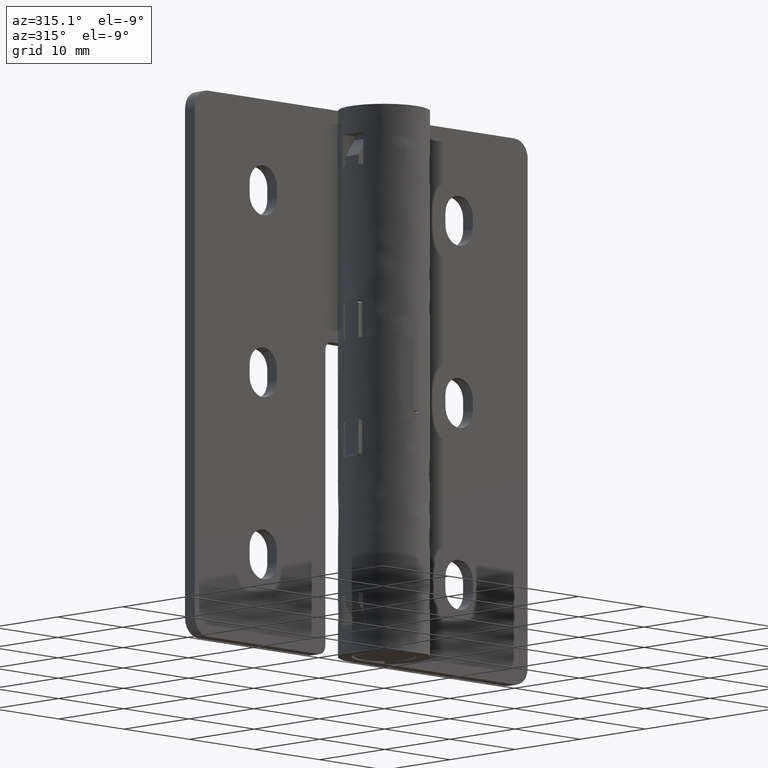
[diagram: clean part render]
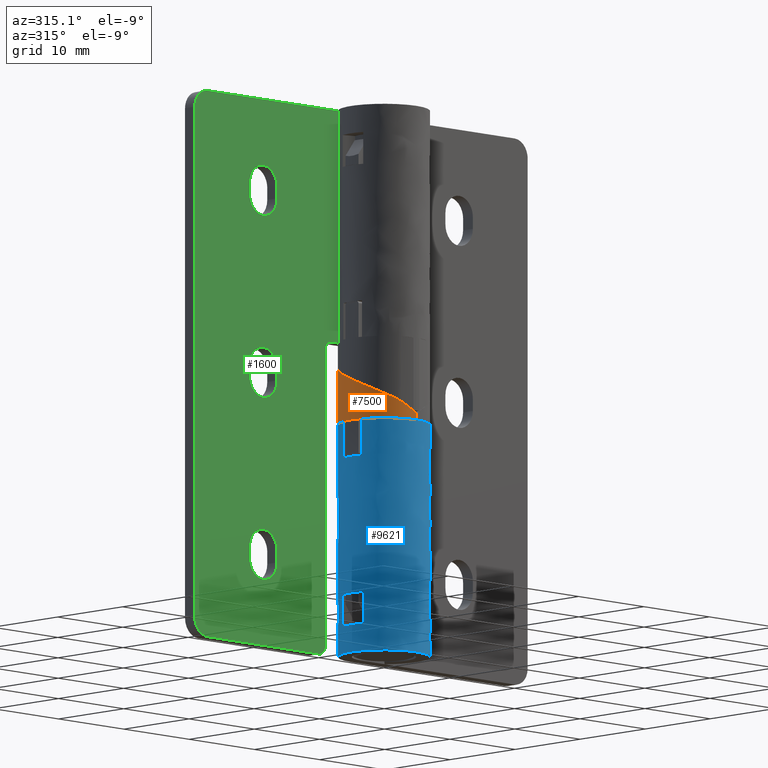
[diagram: same view with three faces highlighted in distinct colors, each labeled with its STEP entity id]
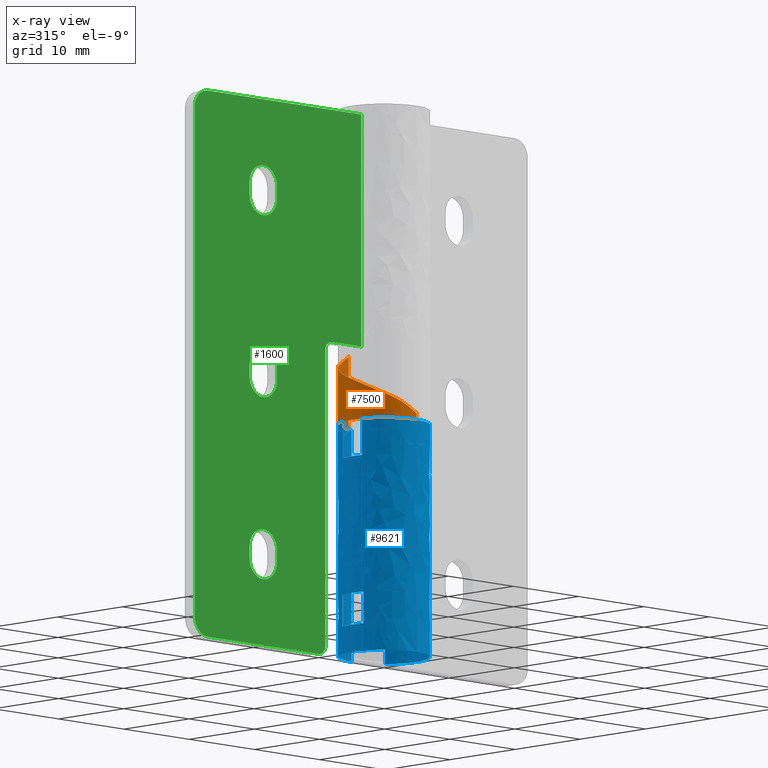
[diagram: x-ray of the same camera — body ghosted, the three highlighted faces saturated]
A machine part, auxiliary view with three faces highlighted in distinct colors.
The next image is the same camera in x-ray (body ghosted, the three faces saturated) — at least one of them is partly hidden behind the body in this view.
Their STEP definitions:

[orange] entity #7500 — the highlighted face is a freeform B-spline surface patch.
#6142=CARTESIAN_POINT('',(-0.435778910578120,4.980973497372441,25.500003000000000));
#6143=VERTEX_POINT('',#6142);
#6144=CARTESIAN_POINT('',(-1.913417443561365,4.619397676732270,25.500003000000000));
#6145=VERTEX_POINT('',#6144);
#6159=CARTESIAN_POINT('',(-1.913417443561365,4.619397676732270,25.500003000000000));
#6160=CARTESIAN_POINT('',(-1.824685331067665,4.653931578654662,25.500002997973059));
#6161=CARTESIAN_POINT('',(-1.577096046367573,4.739799431613939,25.500002994050298));
#6162=CARTESIAN_POINT('',(-1.292589185047273,4.813698600087559,25.500002993884809));
#6163=CARTESIAN_POINT('',(-0.997899054089783,4.877754664974843,25.500002995417731));
#6164=CARTESIAN_POINT('',(-0.756358842764990,4.924835310790413,25.500002996690629));
#6165=CARTESIAN_POINT('',(-0.545237594757059,4.961652832338003,25.500002997041790));
#6166=CARTESIAN_POINT('',(-0.435778910578120,4.980973497372441,25.500003000000000));
#6167=B_SPLINE_CURVE_WITH_KNOTS('',3,(#6159,#6160,#6161,#6162,#6163,#6164,#6165,#6166),.UNSPECIFIED.,.F.,.U.,(4,1,1,1,1,4),(0.000008050446457,0.285640506025686,0.785747013876851,0.880958647626522,1.190445166561782,1.523893812713343),.UNSPECIFIED.);
#6168=EDGE_CURVE('',#6145,#6143,#6167,.T.);
#6178=CARTESIAN_POINT('',(-1.913417439590860,-4.619397667146900,25.500003000000049));
#6179=VERTEX_POINT('',#6178);
#6180=CARTESIAN_POINT('',(-0.000000196563702,-5.0,25.500003000000000));
#6181=VERTEX_POINT('',#6180);
#6195=CARTESIAN_POINT('',(-0.000000196563702,-5.0,25.500003000000000));
#6196=CARTESIAN_POINT('',(-0.070972438461150,-4.992322690957613,25.500002999673690));
#6197=CARTESIAN_POINT('',(-0.233039272660466,-4.974280738242994,25.500002998928540));
#6198=CARTESIAN_POINT('',(-0.455813696974821,-4.948678320056563,25.500002997891830));
#6199=CARTESIAN_POINT('',(-0.708361661731370,-4.915158081620975,25.500002996913960));
#6200=CARTESIAN_POINT('',(-1.010613288175372,-4.868555477849424,25.500002994566209));
#6201=CARTESIAN_POINT('',(-1.429910434672149,-4.781142572792225,25.500002995452700));
#6202=CARTESIAN_POINT('',(-1.742300188092001,-4.685620160111827,25.500002986987070));
#6203=CARTESIAN_POINT('',(-1.913417439590860,-4.619397667146900,25.500003000000049));
#6204=B_SPLINE_CURVE_WITH_KNOTS('',3,(#6195,#6196,#6197,#6198,#6199,#6200,#6201,#6202,#6203),.UNSPECIFIED.,.F.,.U.,(4,1,1,1,1,1,4),(-0.000023915711859,0.214136516353493,0.489196958831006,0.672689972664151,0.978421966260149,1.406561421004687,1.956855687629051),.UNSPECIFIED.);
#6205=EDGE_CURVE('',#6181,#6179,#6204,.T.);
#6280=CARTESIAN_POINT('',(-4.898782048130960,0.999999999999956,25.500002988737901));
#6281=VERTEX_POINT('',#6280);
#6282=CARTESIAN_POINT('',(-4.791457780298720,1.428536232928660,25.500002977970400));
#6283=VERTEX_POINT('',#6282);
#6284=CARTESIAN_POINT('',(-4.898782048130960,0.999999999999956,25.500002988737901));
#6285=CARTESIAN_POINT('',(-4.854335050876317,1.217402031088317,25.500002983291289));
#6286=CARTESIAN_POINT('',(-4.791457780298720,1.428536232928660,25.500002977970400));
#6287=B_SPLINE_CURVE_WITH_KNOTS('',2,(#6284,#6285,#6286),.UNSPECIFIED.,.F.,.U.,(3,3),(0.262818247380966,0.487727279610936),.UNSPECIFIED.);
#6288=EDGE_CURVE('',#6281,#6283,#6287,.T.);
#7032=CARTESIAN_POINT('',(-4.898749811253460,-0.999999714285814,25.500002988737901));
#7033=VERTEX_POINT('',#7032);
#7065=CARTESIAN_POINT('',(-5.000000291207840,-1.254086E-014,25.500003000000000));
#7066=VERTEX_POINT('',#7065);
#7067=CARTESIAN_POINT('',(-4.898749811253460,-0.999999714285814,25.500002988737901));
#7068=CARTESIAN_POINT('',(-4.965762897494331,-0.671334951379042,25.500002992477519));
#7069=CARTESIAN_POINT('',(-5.000056945453081,-0.335659744669460,25.500002996258281));
#7070=CARTESIAN_POINT('',(-5.000000291207840,-1.254086E-014,25.500003000000000));
#7071=B_SPLINE_CURVE_WITH_KNOTS('',3,(#7067,#7068,#7069,#7070),.UNSPECIFIED.,.F.,.U.,(4,4),(0.449656716152548,0.514970894996678),.UNSPECIFIED.);
#7072=EDGE_CURVE('',#7033,#7066,#7071,.T.);
#7074=CARTESIAN_POINT('',(-5.000000291207840,-1.254086E-014,25.500003000000000));
#7075=CARTESIAN_POINT('',(-5.000079971547222,0.335675141986767,25.500002996258100));
#7076=CARTESIAN_POINT('',(-4.965805254117624,0.671335109377231,25.500002992477519));
#7077=CARTESIAN_POINT('',(-4.898782048130960,0.999999999999956,25.500002988737901));
#7078=B_SPLINE_CURVE_WITH_KNOTS('',3,(#7074,#7075,#7076,#7077),.UNSPECIFIED.,.F.,.U.,(4,4),(0.514970894996678,0.580288479103357),.UNSPECIFIED.);
#7079=EDGE_CURVE('',#7066,#6281,#7078,.T.);
#7228=CARTESIAN_POINT('',(-0.000000198292045,-5.0,26.260682210030350));
#7229=CARTESIAN_POINT('',(-0.000000198245547,-5.0,26.240455806686899));
#7230=CARTESIAN_POINT('',(-0.000000198199050,-5.0,26.220229403343449));
#7231=CARTESIAN_POINT('',(-0.000000198152552,-5.0,26.200003000000049));
#7232=CARTESIAN_POINT('',(-0.000000197616150,-5.0,25.966669666666700));
#7233=CARTESIAN_POINT('',(-0.000000197079747,-5.0,25.733336333333352));
#7234=CARTESIAN_POINT('',(-0.000000196543345,-5.0,25.500003000000000));
#7235=CARTESIAN_POINT('',(-0.644754985038160,-4.932076890104220,26.710857076929351));
#7236=CARTESIAN_POINT('',(-0.644754985011413,-4.932076890104231,26.678615985075599));
#7237=CARTESIAN_POINT('',(-0.644754984984665,-4.932076890104231,26.646374893221800));
#7238=CARTESIAN_POINT('',(-0.644754984957918,-4.932076890104231,26.614133801368052));
#7239=CARTESIAN_POINT('',(-0.644754984649357,-4.932076890104250,26.242198104011951));
#7240=CARTESIAN_POINT('',(-0.648534857123921,-4.929193123174779,25.871938697356150));
#7241=CARTESIAN_POINT('',(-0.648534856815360,-4.929193123174810,25.500003000000000));
#7242=CARTESIAN_POINT('',(-1.296718254765932,-4.861208388819690,27.165002624411851));
#7243=CARTESIAN_POINT('',(-1.296718254758936,-4.861208388819690,27.120746844047751));
#7244=CARTESIAN_POINT('',(-1.296718254751940,-4.861208388819700,27.076491063683651));
#7245=CARTESIAN_POINT('',(-1.296718254744942,-4.861208388819700,27.032235283319551));
#7246=CARTESIAN_POINT('',(-1.296718254664222,-4.861208388819749,26.521697221940649));
#7247=CARTESIAN_POINT('',(-1.297069517168094,-4.858386246349560,26.010541061378898));
#7248=CARTESIAN_POINT('',(-1.297069517087374,-4.858386246349610,25.500003000000049));
#7249=CARTESIAN_POINT('',(-2.506803543013230,-4.386728117016225,27.895987669084551));
#7250=CARTESIAN_POINT('',(-2.506803543019965,-4.386728117016220,27.832262801892799));
#7251=CARTESIAN_POINT('',(-2.506803543026695,-4.386728117016220,27.768537934701051));
#7252=CARTESIAN_POINT('',(-2.506803543033430,-4.386728117016215,27.704813067509299));
#7253=CARTESIAN_POINT('',(-2.506803543111095,-4.386728117016165,26.969678133947149));
#7254=CARTESIAN_POINT('',(-2.506465559384890,-4.389443574024850,26.235137933562200));
#7255=CARTESIAN_POINT('',(-2.506465559462560,-4.389443574024805,25.500003000000049));
#7256=CARTESIAN_POINT('',(-3.067871872844050,-4.003817480174980,28.181523161432850));
#7257=CARTESIAN_POINT('',(-3.067871872845705,-4.003817480174964,28.110188673053649));
#7258=CARTESIAN_POINT('',(-3.067871872847365,-4.003817480174950,28.038854184674449));
#7259=CARTESIAN_POINT('',(-3.067871872849024,-4.003817480174934,27.967519696295248));
#7260=CARTESIAN_POINT('',(-3.067871872868150,-4.003817480174774,27.144599591690799));
#7261=CARTESIAN_POINT('',(-3.069714455256485,-4.003782982538421,26.322923104604449));
#7262=CARTESIAN_POINT('',(-3.069714455275615,-4.003782982538261,25.500003000000000));
#7263=CARTESIAN_POINT('',(-4.003196497776165,-3.067250338717275,28.795248060233799));
#7264=CARTESIAN_POINT('',(-4.003196497774505,-3.067250338717290,28.707660808057451));
#7265=CARTESIAN_POINT('',(-4.003196497772845,-3.067250338717305,28.620073555881149));
#7266=CARTESIAN_POINT('',(-4.003196497771191,-3.067250338717320,28.532486303704800));
#7267=CARTESIAN_POINT('',(-4.003196497752061,-3.067250338717480,27.522073074975950));
#7268=CARTESIAN_POINT('',(-4.001353915363720,-3.067284836353840,26.510416228728900));
#7269=CARTESIAN_POINT('',(-4.001353915344590,-3.067284836354000,25.500003000000000));
#7270=CARTESIAN_POINT('',(-4.737218258033391,-1.965619253609730,29.443572721621400));
#7271=CARTESIAN_POINT('',(-4.737218258035250,-1.965619253609820,29.338699184220651));
#7272=CARTESIAN_POINT('',(-4.737218258037110,-1.965619253609910,29.233825646819898));
#7273=CARTESIAN_POINT('',(-4.737218258038960,-1.965619253609995,29.128952109419149));
#7274=CARTESIAN_POINT('',(-4.737218258060390,-1.965619253611020,27.919122974466951));
#7275=CARTESIAN_POINT('',(-4.738135044053020,-1.965609726631570,26.709832134952151));
#7276=CARTESIAN_POINT('',(-4.738135044074450,-1.965609726632595,25.500003000000000));
#7277=CARTESIAN_POINT('',(-5.131329009301170,0.000039916038611,30.390031125599499));
#7278=CARTESIAN_POINT('',(-5.131329009297160,0.000039916038942,30.260006137986299));
#7279=CARTESIAN_POINT('',(-5.131329009293140,0.000039916039274,30.129981150373052));
#7280=CARTESIAN_POINT('',(-5.131329009289130,0.000039916039605,29.999956162759851));
#7281=CARTESIAN_POINT('',(-5.131329009242809,0.000039916043430,28.499977977747200));
#7282=CARTESIAN_POINT('',(-5.130884131842080,0.000058318129540,26.999981185012750));
#7283=CARTESIAN_POINT('',(-5.130884131795760,0.000058318133365,25.500003000000049));
#7284=CARTESIAN_POINT('',(-4.737467452079800,1.965459592731925,31.336804593015000));
#7285=CARTESIAN_POINT('',(-4.737467452094010,1.965459592730690,31.181616809007700));
#7286=CARTESIAN_POINT('',(-4.737467452108211,1.965459592729450,31.026429025000450));
#7287=CARTESIAN_POINT('',(-4.737467452122410,1.965459592728215,30.871241240993150));
#7288=CARTESIAN_POINT('',(-4.737467452286260,1.965459592713940,29.080983115502448));
#7289=CARTESIAN_POINT('',(-4.738330175892660,1.965376457456030,27.290261125490701));
#7290=CARTESIAN_POINT('',(-4.738330176056500,1.965376457441755,25.500003000000000));
#7291=CARTESIAN_POINT('',(-4.002615082528725,3.067569677523095,31.984499126588851));
#7292=CARTESIAN_POINT('',(-4.002615082498260,3.067569677525760,31.812047749745499));
#7293=CARTESIAN_POINT('',(-4.002615082467800,3.067569677528425,31.639596372902201));
#7294=CARTESIAN_POINT('',(-4.002615082437335,3.067569677531090,31.467144996058849));
#7295=CARTESIAN_POINT('',(-4.002615082085915,3.067569677561850,29.477732745470050));
#7296=CARTESIAN_POINT('',(-4.000898645267211,3.067751391796620,27.489415250588848));
#7297=CARTESIAN_POINT('',(-4.000898644915790,3.067751391827375,25.500003000000049));
#7298=CARTESIAN_POINT('',(-3.068453302726055,4.003498156080085,32.599064195405937));
#7299=CARTESIAN_POINT('',(-3.068453302756520,4.003498156077420,32.410329798258743));
#7300=CARTESIAN_POINT('',(-3.068453302786980,4.003498156074755,32.221595401111500));
#7301=CARTESIAN_POINT('',(-3.068453302817445,4.003498156072090,32.032861003964307));
#7302=CARTESIAN_POINT('',(-3.068453303168870,4.003498156041335,29.855606587878750));
#7303=CARTESIAN_POINT('',(-3.070169739987705,4.003316441806555,27.677257416085599));
#7304=CARTESIAN_POINT('',(-3.070169740339130,4.003316441775800,25.500003000000049));
#7305=CARTESIAN_POINT('',(-2.507662665305610,4.386037001566380,32.886504057942098));
#7306=CARTESIAN_POINT('',(-2.507662665419330,4.386037001556431,32.690118436909451));
#7307=CARTESIAN_POINT('',(-2.507662665533055,4.386037001546479,32.493732815876797));
#7308=CARTESIAN_POINT('',(-2.507662665646775,4.386037001536529,32.297347194844150));
#7309=CARTESIAN_POINT('',(-2.507662666958675,4.386037001421755,30.031827675815901));
#7310=CARTESIAN_POINT('',(-2.508156600020195,4.387694024610051,27.765522519028298));
#7311=CARTESIAN_POINT('',(-2.508156601332095,4.387694024495275,25.500003000000000));
#7312=CARTESIAN_POINT('',(-1.435386885952534,4.807120740530900,33.529110729896708));
#7313=CARTESIAN_POINT('',(-1.435386885861052,4.807120740538900,33.315600550786051));
#7314=CARTESIAN_POINT('',(-1.435386885769572,4.807120740546901,33.102090371675452));
#7315=CARTESIAN_POINT('',(-1.435386885678090,4.807120740554911,32.888580192564802));
#7316=CARTESIAN_POINT('',(-1.435386884622752,4.807120740647241,30.425510464023201));
#7317=CARTESIAN_POINT('',(-1.434989548492516,4.805787776258650,27.963072728541650));
#7318=CARTESIAN_POINT('',(-1.434989547437180,4.805787776350980,25.500003000000000));
#7319=CARTESIAN_POINT('',(-0.933244601057620,4.894982305120419,33.862579842021653));
#7320=CARTESIAN_POINT('',(-0.933244600747189,4.894982305147580,33.640245304789552));
#7321=CARTESIAN_POINT('',(-0.933244600436757,4.894982305174739,33.417910767557501));
#7322=CARTESIAN_POINT('',(-0.933244600126326,4.894982305201899,33.195576230325401));
#7323=CARTESIAN_POINT('',(-0.933244596545167,4.894982305515209,30.630708032721301));
#7324=CARTESIAN_POINT('',(-0.935384232588809,4.893380636548400,28.064871197604202));
#7325=CARTESIAN_POINT('',(-0.935384229007650,4.893380636861711,25.500003000000000));
#7326=CARTESIAN_POINT('',(-0.435778930487211,4.980973495630621,34.193479686060549));
#7327=CARTESIAN_POINT('',(-0.435778929957829,4.980973495676930,33.962320790707047));
#7328=CARTESIAN_POINT('',(-0.435778929428448,4.980973495723240,33.731161895353551));
#7329=CARTESIAN_POINT('',(-0.435778928899067,4.980973495769560,33.500003000000049));
#7330=CARTESIAN_POINT('',(-0.435778922792084,4.980973496303850,30.833336333333349));
#7331=CARTESIAN_POINT('',(-0.435778916685102,4.980973496838141,28.166669666666699));
#7332=CARTESIAN_POINT('',(-0.435778910578120,4.980973497372441,25.500003000000000));
#7333=B_SPLINE_SURFACE_WITH_KNOTS('',3,3,((#7228,#7235,#7242,#7249,#7256,#7263,#7270,#7277,#7284,#7291,#7298,#7305,#7312,#7319,#7326),(#7229,#7236,#7243,#7250,#7257,#7264,#7271,#7278,#7285,#7292,#7299,#7306,#7313,#7320,#7327),(#7230,#7237,#7244,#7251,#7258,#7265,#7272,#7279,#7286,#7293,#7300,#7307,#7314,#7321,#7328),(#7231,#7238,#7245,#7252,#7259,#7266,#7273,#7280,#7287,#7294,#7301,#7308,#7315,#7322,#7329),(#7232,#7239,#7246,#7253,#7260,#7267,#7274,#7281,#7288,#7295,#7302,#7309,#7316,#7323,#7330),(#7233,#7240,#7247,#7254,#7261,#7268,#7275,#7282,#7289,#7296,#7303,#7310,#7317,#7324,#7331),(#7234,#7241,#7248,#7255,#7262,#7269,#7276,#7283,#7290,#7297,#7304,#7311,#7318,#7325,#7332)),.UNSPECIFIED.,.F.,.F.,.U.,(4,3,4),(4,2,2,1,1,1,2,2,4),(0.0,0.693476686060553,8.693476686060684),(0.0,2.367871882534459,4.646231096158944,6.924590309783432,9.202949524756237,11.481308741170420,13.759667957770750,16.038027174557229,17.870814863848970),.UNSPECIFIED.);
#7334=ORIENTED_EDGE('',*,*,#6205,.F.);
#7335=CARTESIAN_POINT('',(-0.000000198301101,-5.0,26.256145355879550));
#7336=VERTEX_POINT('',#7335);
#7337=CARTESIAN_POINT('',(-0.000000198301101,-5.0,26.256145355879550));
#7338=CARTESIAN_POINT('',(-0.000000196563702,-5.0,25.500003000000000));
#7339=QUASI_UNIFORM_CURVE('',1,(#7337,#7338),.UNSPECIFIED.,.F.,.U.);
#7340=EDGE_CURVE('',#7336,#6181,#7339,.T.);
#7341=ORIENTED_EDGE('',*,*,#7340,.F.);
#7342=CARTESIAN_POINT('',(-0.161571264389384,-4.982832967561320,26.303737267790002));
#7343=VERTEX_POINT('',#7342);
#7344=CARTESIAN_POINT('',(-0.161571264389384,-4.982832967561320,26.303737267790002));
#7345=CARTESIAN_POINT('',(-0.137420383350842,-4.985435787692256,26.288242650700841));
#7346=CARTESIAN_POINT('',(-0.111688535875644,-4.988185218594085,26.276513002092560));
#7347=CARTESIAN_POINT('',(-0.070779192183750,-4.992527800564070,26.264424413372460));
#7348=CARTESIAN_POINT('',(-0.056716314474649,-4.994016155560161,26.261336321836939));
#7349=CARTESIAN_POINT('',(-0.028534293541543,-4.996992918306773,26.257228639406311));
#7350=CARTESIAN_POINT('',(-0.014326611834461,-4.998490752478769,26.256176496593039));
#7351=CARTESIAN_POINT('',(-0.000000198278542,-5.000000000000330,26.256145355892802));
#7352=B_SPLINE_CURVE_WITH_KNOTS('',3,(#7344,#7345,#7346,#7347,#7348,#7349,#7350,#7351),.UNSPECIFIED.,.F.,.U.,(4,2,2,4),(0.0,0.500000000000000,0.750000000000000,1.0),.UNSPECIFIED.);
#7353=EDGE_CURVE('',#7343,#7336,#7352,.T.);
#7354=ORIENTED_EDGE('',*,*,#7353,.F.);
#7355=CARTESIAN_POINT('',(-1.913417439590845,-4.619397667146900,27.375003000000000));
#7356=VERTEX_POINT('',#7355);
#7357=CARTESIAN_POINT('',(-0.161571264389384,-4.982832967561320,26.303737267790002));
#7358=CARTESIAN_POINT('',(-0.753342713326861,-4.919055805588358,26.683403414515482));
#7359=CARTESIAN_POINT('',(-1.348191605074887,-4.841025440153552,27.060844698081301));
#7360=CARTESIAN_POINT('',(-1.913417439590847,-4.619397667146904,27.375003000000032));
#7361=B_SPLINE_CURVE_WITH_KNOTS('',3,(#7357,#7358,#7359,#7360),.UNSPECIFIED.,.F.,.U.,(4,4),(0.0,0.121440200103425),.UNSPECIFIED.);
#7362=EDGE_CURVE('',#7343,#7356,#7361,.T.);
#7363=ORIENTED_EDGE('',*,*,#7362,.T.);
#7364=CARTESIAN_POINT('',(-3.535534185310105,-3.535533909446125,28.250003000000000));
#7365=VERTEX_POINT('',#7364);
#7366=CARTESIAN_POINT('',(-1.913417439590847,-4.619397667146904,27.375003000000032));
#7367=CARTESIAN_POINT('',(-2.506803543030917,-4.386728117017200,27.704813067507899));
#7368=CARTESIAN_POINT('',(-3.067871872846649,-4.003817480176556,27.967519696294140));
#7369=CARTESIAN_POINT('',(-3.535534185308127,-3.535533909448110,28.250002999998831));
#7370=B_SPLINE_CURVE_WITH_KNOTS('',3,(#7366,#7367,#7368,#7369),.UNSPECIFIED.,.F.,.U.,(4,4),(0.132499379607163,0.259989884711852),.UNSPECIFIED.);
#7371=EDGE_CURVE('',#7356,#7365,#7370,.T.);
#7372=ORIENTED_EDGE('',*,*,#7371,.T.);
#7373=CARTESIAN_POINT('',(-4.619397943029929,-1.913417163721515,29.125002999997449));
#7374=VERTEX_POINT('',#7373);
#7375=CARTESIAN_POINT('',(-3.535534185310105,-3.535533909446125,28.250003000000000));
#7376=CARTESIAN_POINT('',(-4.003196497769636,-3.067250338719652,28.532486303703529));
#7377=CARTESIAN_POINT('',(-4.370207377795422,-2.516434796329195,28.830719206472480));
#7378=CARTESIAN_POINT('',(-4.619397943011867,-1.913417163739021,29.125002999993889));
#7379=B_SPLINE_CURVE_WITH_KNOTS('',3,(#7375,#7376,#7377,#7378),.UNSPECIFIED.,.F.,.U.,(4,4),(0.259989884711852,0.387480389816541),.UNSPECIFIED.);
#7380=EDGE_CURVE('',#7365,#7374,#7379,.T.);
#7381=ORIENTED_EDGE('',*,*,#7380,.T.);
#7382=CARTESIAN_POINT('',(-5.000000290880561,1.617265E-011,30.000002999997552));
#7383=VERTEX_POINT('',#7382);
#7384=CARTESIAN_POINT('',(-4.619397943029929,-1.913417163721515,29.125002999997449));
#7385=CARTESIAN_POINT('',(-4.868588508376152,-1.310399530790135,29.419286793690279));
#7386=CARTESIAN_POINT('',(-4.999958758791086,-0.655179807582523,29.709621478133229));
#7387=CARTESIAN_POINT('',(-5.000000291208449,-1.101224E-011,30.000002999995040));
#7388=B_SPLINE_CURVE_WITH_KNOTS('',3,(#7384,#7385,#7386,#7387),.UNSPECIFIED.,.F.,.U.,(4,4),(0.387480389816541,0.514970894996678),.UNSPECIFIED.);
#7389=EDGE_CURVE('',#7374,#7383,#7388,.T.);
#7390=ORIENTED_EDGE('',*,*,#7389,.T.);
#7391=CARTESIAN_POINT('',(-4.619397952292260,1.913417167575590,30.875002999996951));
#7392=VERTEX_POINT('',#7391);
#7393=CARTESIAN_POINT('',(-5.000000290880561,1.617265E-011,30.000002999997552));
#7394=CARTESIAN_POINT('',(-5.000041823625836,0.655179807972773,30.290384522039560));
#7395=CARTESIAN_POINT('',(-4.868754637880374,1.310319700320406,30.580812881503022));
#7396=CARTESIAN_POINT('',(-4.619397952599059,1.913417167687271,30.875002999995399));
#7397=B_SPLINE_CURVE_WITH_KNOTS('',3,(#7393,#7394,#7395,#7396),.UNSPECIFIED.,.F.,.U.,(4,4),(0.514970894996678,0.642461400257470),.UNSPECIFIED.);
#7398=EDGE_CURVE('',#7383,#7392,#7397,.T.);
#7399=ORIENTED_EDGE('',*,*,#7398,.T.);
#7400=CARTESIAN_POINT('',(-3.535534192417210,3.535533916553210,31.750003000000049));
#7401=VERTEX_POINT('',#7400);
#7402=CARTESIAN_POINT('',(-4.619397952292260,1.913417167575590,30.875002999996951));
#7403=CARTESIAN_POINT('',(-4.370041267298084,2.516514635101685,31.169193118510972));
#7404=CARTESIAN_POINT('',(-4.002615082439967,3.067569677527927,31.467144996057041));
#7405=CARTESIAN_POINT('',(-3.535534192648599,3.535533916780341,31.750002999998738));
#7406=B_SPLINE_CURVE_WITH_KNOTS('',3,(#7402,#7403,#7404,#7405),.UNSPECIFIED.,.F.,.U.,(4,4),(0.642461400257470,0.769951905528679),.UNSPECIFIED.);
#7407=EDGE_CURVE('',#7392,#7401,#7406,.T.);
#7408=ORIENTED_EDGE('',*,*,#7407,.T.);
#7409=CARTESIAN_POINT('',(-1.913417443437200,4.619397676432760,32.625003000000049));
#7410=VERTEX_POINT('',#7409);
#7411=CARTESIAN_POINT('',(-3.535534192417210,3.535533916553210,31.750003000000049));
#7412=CARTESIAN_POINT('',(-3.068453302819054,4.003498156070992,32.032861003963554));
#7413=CARTESIAN_POINT('',(-2.507662665648479,4.386037001535860,32.297347194843212));
#7414=CARTESIAN_POINT('',(-1.913417443562035,4.619397676732008,32.625002999999609));
#7415=B_SPLINE_CURVE_WITH_KNOTS('',3,(#7411,#7412,#7413,#7414),.UNSPECIFIED.,.F.,.U.,(4,4),(0.769951905528679,0.897442410810304),.UNSPECIFIED.);
#7416=EDGE_CURVE('',#7401,#7410,#7415,.T.);
#7417=ORIENTED_EDGE('',*,*,#7416,.T.);
#7418=CARTESIAN_POINT('',(-0.435778928898009,4.980973495769651,33.500003000000049));
#7419=VERTEX_POINT('',#7418);
#7420=CARTESIAN_POINT('',(-1.913417443437200,4.619397676432760,32.625003000000049));
#7421=CARTESIAN_POINT('',(-1.435386885678091,4.807120740554911,32.888580192564802));
#7422=CARTESIAN_POINT('',(-0.933244600126327,4.894982305201899,33.195576230325401));
#7423=CARTESIAN_POINT('',(-0.435778928899067,4.980973495769560,33.500003000000049));
#7424=B_SPLINE_CURVE_WITH_KNOTS('',3,(#7420,#7421,#7422,#7423),.UNSPECIFIED.,.F.,.U.,(4,4),(0.897442410810304,1.0),.UNSPECIFIED.);
#7425=EDGE_CURVE('',#7410,#7419,#7424,.T.);
#7426=ORIENTED_EDGE('',*,*,#7425,.T.);
#7427=CARTESIAN_POINT('',(-0.435778928898009,4.980973495769651,33.500003000000049));
#7428=CARTESIAN_POINT('',(-0.435778910578120,4.980973497372441,25.500003000000000));
#7429=QUASI_UNIFORM_CURVE('',1,(#7427,#7428),.UNSPECIFIED.,.F.,.U.);
#7430=EDGE_CURVE('',#7419,#6143,#7429,.T.);
#7431=ORIENTED_EDGE('',*,*,#7430,.T.);
#7432=ORIENTED_EDGE('',*,*,#6168,.F.);
#7433=CARTESIAN_POINT('',(-3.535534192646470,3.535533916782475,25.500003000000000));
#7434=VERTEX_POINT('',#7433);
#7435=CARTESIAN_POINT('',(-1.913417443561365,4.619397676732270,25.500003000000000));
#7436=CARTESIAN_POINT('',(-2.518095132577353,4.368931865638331,25.500002988422469));
#7437=CARTESIAN_POINT('',(-3.072733809030394,3.998334127505461,25.500002985872388));
#7438=CARTESIAN_POINT('',(-3.535534094813890,3.535533818949917,25.500002983744551));
#7439=QUASI_UNIFORM_CURVE('',3,(#7435,#7436,#7437,#7438),.UNSPECIFIED.,.F.,.U.);
#7440=EDGE_CURVE('',#6145,#7434,#7439,.T.);
#7441=ORIENTED_EDGE('',*,*,#7440,.T.);
#7442=CARTESIAN_POINT('',(-4.619397952596300,1.913417167697280,25.500003000000000));
#7443=VERTEX_POINT('',#7442);
#7444=CARTESIAN_POINT('',(-3.535534192646470,3.535533916782475,25.500003000000000));
#7445=CARTESIAN_POINT('',(-3.766934235498618,3.304133666879164,25.500002982680630));
#7446=CARTESIAN_POINT('',(-3.975538292854815,3.049948876249200,25.500002981721540));
#7447=CARTESIAN_POINT('',(-4.339158139295682,2.505753296311766,25.500002980049700));
#7448=CARTESIAN_POINT('',(-4.494164937164128,2.215755963310864,25.500002979337030));
#7449=CARTESIAN_POINT('',(-4.619397789931453,1.913417100319289,25.500002978761241));
#7450=B_SPLINE_CURVE_WITH_KNOTS('',3,(#7444,#7445,#7446,#7447,#7448,#7449),.UNSPECIFIED.,.F.,.U.,(4,2,4),(0.0,0.500000000000000,1.0),.UNSPECIFIED.);
#7451=EDGE_CURVE('',#7434,#7443,#7450,.T.);
#7452=ORIENTED_EDGE('',*,*,#7451,.T.);
#7453=CARTESIAN_POINT('',(-4.619397952596300,1.913417167697280,25.500003000000000));
#7454=CARTESIAN_POINT('',(-4.685019510962992,1.754887152219327,25.500002992625038));
#7455=CARTESIAN_POINT('',(-4.742474111466283,1.592974631610648,25.500002985268861));
#7456=CARTESIAN_POINT('',(-4.791457780298720,1.428536232928660,25.500002977970400));
#7457=QUASI_UNIFORM_CURVE('',3,(#7453,#7454,#7455,#7456),.UNSPECIFIED.,.F.,.U.);
#7458=EDGE_CURVE('',#7443,#6283,#7457,.T.);
#7459=ORIENTED_EDGE('',*,*,#7458,.T.);
#7460=ORIENTED_EDGE('',*,*,#6288,.F.);
#7461=ORIENTED_EDGE('',*,*,#7079,.F.);
#7462=ORIENTED_EDGE('',*,*,#7072,.F.);
#7463=CARTESIAN_POINT('',(-4.791434454819010,-1.428529278616466,25.500002977970500));
#7464=VERTEX_POINT('',#7463);
#7465=CARTESIAN_POINT('',(-4.791434454819010,-1.428529278616466,25.500002977970500));
#7466=CARTESIAN_POINT('',(-4.854348943794713,-1.217308328520274,25.500002983293609));
#7467=CARTESIAN_POINT('',(-4.898749811253460,-0.999999714285814,25.500002988737901));
#7468=B_SPLINE_CURVE_WITH_KNOTS('',2,(#7465,#7466,#7467),.UNSPECIFIED.,.F.,.U.,(3,3),(0.512259164532263,0.737288869972676),.UNSPECIFIED.);
#7469=EDGE_CURVE('',#7464,#7033,#7468,.T.);
#7470=ORIENTED_EDGE('',*,*,#7469,.F.);
#7471=CARTESIAN_POINT('',(-4.619397943010870,-1.913417163726885,25.500003000000000));
#7472=VERTEX_POINT('',#7471);
#7473=CARTESIAN_POINT('',(-4.791434454819010,-1.428529278616466,25.500002977970500));
#7474=CARTESIAN_POINT('',(-4.742458551086064,-1.592969992032554,25.500002985268932));
#7475=CARTESIAN_POINT('',(-4.685011736278068,-1.754884833514831,25.500002992625070));
#7476=CARTESIAN_POINT('',(-4.619397943010870,-1.913417163726885,25.500003000000000));
#7477=QUASI_UNIFORM_CURVE('',3,(#7473,#7474,#7475,#7476),.UNSPECIFIED.,.F.,.U.);
#7478=EDGE_CURVE('',#7464,#7472,#7477,.T.);
#7479=ORIENTED_EDGE('',*,*,#7478,.T.);
#7480=CARTESIAN_POINT('',(-3.535534185310100,-3.535533909446130,25.500003000000000));
#7481=VERTEX_POINT('',#7480);
#7482=CARTESIAN_POINT('',(-4.619397943010870,-1.913417163726885,25.500003000000000));
#7483=CARTESIAN_POINT('',(-4.494164937164117,-2.215755963310889,25.500002979337030));
#7484=CARTESIAN_POINT('',(-4.339158139295668,-2.505753296311787,25.500002980049711));
#7485=CARTESIAN_POINT('',(-3.975538292854803,-3.049948876249212,25.500002981721529));
#7486=CARTESIAN_POINT('',(-3.766934235498611,-3.304133666879173,25.500002982680630));
#7487=CARTESIAN_POINT('',(-3.535534094813884,-3.535533818949923,25.500002983744551));
#7488=B_SPLINE_CURVE_WITH_KNOTS('',3,(#7482,#7483,#7484,#7485,#7486,#7487),.UNSPECIFIED.,.F.,.U.,(4,2,4),(0.0,0.500000000000000,1.0),.UNSPECIFIED.);
#7489=EDGE_CURVE('',#7472,#7481,#7488,.T.);
#7490=ORIENTED_EDGE('',*,*,#7489,.T.);
#7491=CARTESIAN_POINT('',(-3.535534185310100,-3.535533909446130,25.500003000000000));
#7492=CARTESIAN_POINT('',(-3.072733809030317,-3.998334127505537,25.500002985872388));
#7493=CARTESIAN_POINT('',(-2.518095132577178,-4.368931865638446,25.500002988422469));
#7494=CARTESIAN_POINT('',(-1.913417412212746,-4.619397601050289,25.500002991202610));
#7495=QUASI_UNIFORM_CURVE('',3,(#7491,#7492,#7493,#7494),.UNSPECIFIED.,.F.,.U.);
#7496=EDGE_CURVE('',#7481,#6179,#7495,.T.);
#7497=ORIENTED_EDGE('',*,*,#7496,.T.);
#7498=EDGE_LOOP('',(#7334,#7341,#7354,#7363,#7372,#7381,#7390,#7399,#7408,#7417,#7426,#7431,#7432,#7441,#7452,#7459,#7460,#7461,#7462,#7470,#7479,#7490,#7497));
#7499=FACE_OUTER_BOUND('',#7498,.T.);
#7500=ADVANCED_FACE('',(#7499),#7333,.F.);

[blue] entity #9621 — the highlighted face is a freeform B-spline surface patch.
#6142=CARTESIAN_POINT('',(-0.435778910578120,4.980973497372441,25.500003000000000));
#6143=VERTEX_POINT('',#6142);
#6144=CARTESIAN_POINT('',(-1.913417443561365,4.619397676732270,25.500003000000000));
#6145=VERTEX_POINT('',#6144);
#6146=CARTESIAN_POINT('',(-0.435778910578120,4.980973497372441,25.500003000000000));
#6147=CARTESIAN_POINT('',(-1.202424087419815,4.913900705712152,25.500002994471586));
#6148=CARTESIAN_POINT('',(-1.913417412212841,4.619397601050250,25.500002991202631));
#6156=(BOUNDED_CURVE()B_SPLINE_CURVE(2,(#6146,#6147,#6148),.UNSPECIFIED.,.F.,.U.)CURVE()GEOMETRIC_REPRESENTATION_ITEM()QUASI_UNIFORM_CURVE()RATIONAL_B_SPLINE_CURVE((1.0,0.988361509452402,1.0))REPRESENTATION_ITEM(''));
#6157=EDGE_CURVE('',#6143,#6145,#6156,.T.);
#6178=CARTESIAN_POINT('',(-1.913417439590860,-4.619397667146900,25.500003000000049));
#6179=VERTEX_POINT('',#6178);
#6180=CARTESIAN_POINT('',(-0.000000196563702,-5.0,25.500003000000000));
#6181=VERTEX_POINT('',#6180);
#6182=CARTESIAN_POINT('',(-1.913417439590860,-4.619397667146900,25.500003000000049));
#6183=CARTESIAN_POINT('',(-0.994562067797783,-4.999999981169886,25.500002995427277));
#6184=CARTESIAN_POINT('',(-0.000000196563703,-4.999999999999999,25.500003000000000));
#6192=(BOUNDED_CURVE()B_SPLINE_CURVE(2,(#6182,#6183,#6184),.UNSPECIFIED.,.F.,.U.)CURVE()GEOMETRIC_REPRESENTATION_ITEM()QUASI_UNIFORM_CURVE()RATIONAL_B_SPLINE_CURVE((1.0,0.980785279114504,1.0))REPRESENTATION_ITEM(''));
#6193=EDGE_CURVE('',#6179,#6181,#6192,.T.);
#6215=CARTESIAN_POINT('',(1.913417046484685,-4.619397667146900,25.500003008797400));
#6216=VERTEX_POINT('',#6215);
#6217=CARTESIAN_POINT('',(-0.000000196563703,-4.999999999999999,25.500003000000000));
#6218=CARTESIAN_POINT('',(0.994561682171661,-5.000000018830112,25.500003004572729));
#6219=CARTESIAN_POINT('',(1.913417046830309,-4.619397667981309,25.500003008797371));
#6227=(BOUNDED_CURVE()B_SPLINE_CURVE(2,(#6217,#6218,#6219),.UNSPECIFIED.,.F.,.U.)CURVE()GEOMETRIC_REPRESENTATION_ITEM()QUASI_UNIFORM_CURVE()RATIONAL_B_SPLINE_CURVE((1.0,0.980785278832958,1.0))REPRESENTATION_ITEM(''));
#6228=EDGE_CURVE('',#6181,#6216,#6227,.T.);
#6250=CARTESIAN_POINT('',(4.791457489559470,1.428536207007384,25.500003022030050));
#6251=VERTEX_POINT('',#6250);
#6282=CARTESIAN_POINT('',(-4.791457780298720,1.428536232928660,25.500002977970400));
#6283=VERTEX_POINT('',#6282);
#7433=CARTESIAN_POINT('',(-3.535534192646470,3.535533916782475,25.500003000000000));
#7434=VERTEX_POINT('',#7433);
#7435=CARTESIAN_POINT('',(-1.913417443561365,4.619397676732270,25.500003000000000));
#7436=CARTESIAN_POINT('',(-2.518095132577353,4.368931865638331,25.500002988422469));
#7437=CARTESIAN_POINT('',(-3.072733809030394,3.998334127505461,25.500002985872388));
#7438=CARTESIAN_POINT('',(-3.535534094813890,3.535533818949917,25.500002983744551));
#7439=QUASI_UNIFORM_CURVE('',3,(#7435,#7436,#7437,#7438),.UNSPECIFIED.,.F.,.U.);
#7440=EDGE_CURVE('',#6145,#7434,#7439,.T.);
#7442=CARTESIAN_POINT('',(-4.619397952596300,1.913417167697280,25.500003000000000));
#7443=VERTEX_POINT('',#7442);
#7444=CARTESIAN_POINT('',(-3.535534192646470,3.535533916782475,25.500003000000000));
#7445=CARTESIAN_POINT('',(-3.766934235498618,3.304133666879164,25.500002982680630));
#7446=CARTESIAN_POINT('',(-3.975538292854815,3.049948876249200,25.500002981721540));
#7447=CARTESIAN_POINT('',(-4.339158139295682,2.505753296311766,25.500002980049700));
#7448=CARTESIAN_POINT('',(-4.494164937164128,2.215755963310864,25.500002979337030));
#7449=CARTESIAN_POINT('',(-4.619397789931453,1.913417100319289,25.500002978761241));
#7450=B_SPLINE_CURVE_WITH_KNOTS('',3,(#7444,#7445,#7446,#7447,#7448,#7449),.UNSPECIFIED.,.F.,.U.,(4,2,4),(0.0,0.500000000000000,1.0),.UNSPECIFIED.);
#7451=EDGE_CURVE('',#7434,#7443,#7450,.T.);
#7453=CARTESIAN_POINT('',(-4.619397952596300,1.913417167697280,25.500003000000000));
#7454=CARTESIAN_POINT('',(-4.685019510962992,1.754887152219327,25.500002992625038));
#7455=CARTESIAN_POINT('',(-4.742474111466283,1.592974631610648,25.500002985268861));
#7456=CARTESIAN_POINT('',(-4.791457780298720,1.428536232928660,25.500002977970400));
#7457=QUASI_UNIFORM_CURVE('',3,(#7453,#7454,#7455,#7456),.UNSPECIFIED.,.F.,.U.);
#7458=EDGE_CURVE('',#7443,#6283,#7457,.T.);
#7463=CARTESIAN_POINT('',(-4.791434454819010,-1.428529278616466,25.500002977970500));
#7464=VERTEX_POINT('',#7463);
#7471=CARTESIAN_POINT('',(-4.619397943010870,-1.913417163726885,25.500003000000000));
#7472=VERTEX_POINT('',#7471);
#7473=CARTESIAN_POINT('',(-4.791434454819010,-1.428529278616466,25.500002977970500));
#7474=CARTESIAN_POINT('',(-4.742458551086064,-1.592969992032554,25.500002985268932));
#7475=CARTESIAN_POINT('',(-4.685011736278068,-1.754884833514831,25.500002992625070));
#7476=CARTESIAN_POINT('',(-4.619397943010870,-1.913417163726885,25.500003000000000));
#7477=QUASI_UNIFORM_CURVE('',3,(#7473,#7474,#7475,#7476),.UNSPECIFIED.,.F.,.U.);
#7478=EDGE_CURVE('',#7464,#7472,#7477,.T.);
#7480=CARTESIAN_POINT('',(-3.535534185310100,-3.535533909446130,25.500003000000000));
#7481=VERTEX_POINT('',#7480);
#7482=CARTESIAN_POINT('',(-4.619397943010870,-1.913417163726885,25.500003000000000));
#7483=CARTESIAN_POINT('',(-4.494164937164117,-2.215755963310889,25.500002979337030));
#7484=CARTESIAN_POINT('',(-4.339158139295668,-2.505753296311787,25.500002980049711));
#7485=CARTESIAN_POINT('',(-3.975538292854803,-3.049948876249212,25.500002981721529));
#7486=CARTESIAN_POINT('',(-3.766934235498611,-3.304133666879173,25.500002982680630));
#7487=CARTESIAN_POINT('',(-3.535534094813884,-3.535533818949923,25.500002983744551));
#7488=B_SPLINE_CURVE_WITH_KNOTS('',3,(#7482,#7483,#7484,#7485,#7486,#7487),.UNSPECIFIED.,.F.,.U.,(4,2,4),(0.0,0.500000000000000,1.0),.UNSPECIFIED.);
#7489=EDGE_CURVE('',#7472,#7481,#7488,.T.);
#7491=CARTESIAN_POINT('',(-3.535534185310100,-3.535533909446130,25.500003000000000));
#7492=CARTESIAN_POINT('',(-3.072733809030317,-3.998334127505537,25.500002985872388));
#7493=CARTESIAN_POINT('',(-2.518095132577178,-4.368931865638446,25.500002988422469));
#7494=CARTESIAN_POINT('',(-1.913417412212746,-4.619397601050289,25.500002991202610));
#7495=QUASI_UNIFORM_CURVE('',3,(#7491,#7492,#7493,#7494),.UNSPECIFIED.,.F.,.U.);
#7496=EDGE_CURVE('',#7481,#6179,#7495,.T.);
#7506=CARTESIAN_POINT('',(4.791434164078070,-1.428529252694684,25.500003022029752));
#7507=VERTEX_POINT('',#7506);
#7631=CARTESIAN_POINT('',(3.535533792203925,-3.535533909446130,25.500003016255452));
#7632=VERTEX_POINT('',#7631);
#7633=CARTESIAN_POINT('',(1.913417046484685,-4.619397667146900,25.500003008797400));
#7634=CARTESIAN_POINT('',(2.518094788593780,-4.368931948486252,25.500003011577519));
#7635=CARTESIAN_POINT('',(3.072733488516073,-3.998334219442560,25.500003014127600));
#7636=CARTESIAN_POINT('',(3.535533796362466,-3.535533913604676,25.500003016255430));
#7637=QUASI_UNIFORM_CURVE('',3,(#7633,#7634,#7635,#7636),.UNSPECIFIED.,.F.,.U.);
#7638=EDGE_CURVE('',#6216,#7632,#7637,.T.);
#7640=CARTESIAN_POINT('',(4.619397549904690,-1.913417163726885,25.500003021238800));
#7641=VERTEX_POINT('',#7640);
#7642=CARTESIAN_POINT('',(3.535533792203925,-3.535533909446130,25.500003016255452));
#7643=CARTESIAN_POINT('',(3.766933950480330,-3.304133760491065,25.500003017319340));
#7644=CARTESIAN_POINT('',(3.975538020448508,-3.049948966778581,25.500003018278459));
#7645=CARTESIAN_POINT('',(4.339157889490256,-2.505753377320944,25.500003019950270));
#7646=CARTESIAN_POINT('',(4.494164697345919,-2.215756037884280,25.500003020662959));
#7647=CARTESIAN_POINT('',(4.619397558411042,-1.913417167250328,25.500003021238751));
#7648=B_SPLINE_CURVE_WITH_KNOTS('',3,(#7642,#7643,#7644,#7645,#7646,#7647),.UNSPECIFIED.,.F.,.U.,(4,2,4),(0.0,0.500000000000000,1.0),.UNSPECIFIED.);
#7649=EDGE_CURVE('',#7632,#7641,#7648,.T.);
#7651=CARTESIAN_POINT('',(4.619397549904690,-1.913417163726885,25.500003021238800));
#7652=CARTESIAN_POINT('',(4.685011379568461,-1.754884825813528,25.500003021540468));
#7653=CARTESIAN_POINT('',(4.742458228587008,-1.592969975595001,25.500003021804581));
#7654=CARTESIAN_POINT('',(4.791434164078070,-1.428529252694684,25.500003022029752));
#7655=QUASI_UNIFORM_CURVE('',3,(#7651,#7652,#7653,#7654),.UNSPECIFIED.,.F.,.U.);
#7656=EDGE_CURVE('',#7641,#7507,#7655,.T.);
#7662=CARTESIAN_POINT('',(4.619397559490120,1.913417167697280,25.500003021238751));
#7663=VERTEX_POINT('',#7662);
#7664=CARTESIAN_POINT('',(4.791457489559470,1.428536207007384,25.500003022030050));
#7665=CARTESIAN_POINT('',(4.742473788968357,1.592974615173433,25.500003021804769));
#7666=CARTESIAN_POINT('',(4.685019154253946,1.754887144518192,25.500003021540540));
#7667=CARTESIAN_POINT('',(4.619397559490120,1.913417167697280,25.500003021238751));
#7668=QUASI_UNIFORM_CURVE('',3,(#7664,#7665,#7666,#7667),.UNSPECIFIED.,.F.,.U.);
#7669=EDGE_CURVE('',#6251,#7663,#7668,.T.);
#7671=CARTESIAN_POINT('',(3.584541188837410,3.485713142742660,25.500003016480751));
#7672=VERTEX_POINT('',#7671);
#7673=CARTESIAN_POINT('',(4.619397559490120,1.913417167697280,25.500003021238751));
#7674=CARTESIAN_POINT('',(4.498611754855893,2.204985076963190,25.500003020683408));
#7675=CARTESIAN_POINT('',(4.350139433395332,2.485077446019620,25.500003020000769));
#7676=CARTESIAN_POINT('',(4.003117129831582,3.012321406261290,25.500003018405259));
#7677=CARTESIAN_POINT('',(3.804574571520246,3.259461718202011,25.500003017492411));
#7678=CARTESIAN_POINT('',(3.584541188837410,3.485713142742660,25.500003016480751));
#7679=B_SPLINE_CURVE_WITH_KNOTS('',3,(#7673,#7674,#7675,#7676,#7677,#7678),.UNSPECIFIED.,.F.,.U.,(4,2,4),(0.0,0.500000000000000,1.0),.UNSPECIFIED.);
#7680=EDGE_CURVE('',#7663,#7672,#7679,.T.);
#8131=CARTESIAN_POINT('',(-4.746642354470700,-1.571428122449125,3.000000978176185));
#8132=VERTEX_POINT('',#8131);
#8133=CARTESIAN_POINT('',(-4.746642354470700,1.571428122449050,3.000000978176185));
#8134=VERTEX_POINT('',#8133);
#8135=CARTESIAN_POINT('',(-4.746642354470700,-1.571428122449125,3.000000978176185));
#8136=CARTESIAN_POINT('',(-5.266880906020989,-3.676226E-014,3.000000975784291));
#8137=CARTESIAN_POINT('',(-4.746642354470698,1.571428122449049,3.000000978176208));
#8145=(BOUNDED_CURVE()B_SPLINE_CURVE(2,(#8135,#8136,#8137),.UNSPECIFIED.,.F.,.U.)CURVE()GEOMETRIC_REPRESENTATION_ITEM()QUASI_UNIFORM_CURVE()RATIONAL_B_SPLINE_CURVE((1.0,0.949328471204275,1.0))REPRESENTATION_ITEM(''));
#8146=EDGE_CURVE('',#8132,#8134,#8145,.T.);
#8167=CARTESIAN_POINT('',(-4.746642370562751,-1.571428122449120,6.500000978176241));
#8168=VERTEX_POINT('',#8167);
#8169=CARTESIAN_POINT('',(-4.746642370562760,1.571428122449050,6.500000978176241));
#8170=VERTEX_POINT('',#8169);
#8171=CARTESIAN_POINT('',(-4.746642370562751,-1.571428122449120,6.500000978176241));
#8172=CARTESIAN_POINT('',(-5.266880922113052,-3.676226E-014,6.500000975784290));
#8173=CARTESIAN_POINT('',(-4.746642370562761,1.571428122449049,6.500000978176209));
#8181=(BOUNDED_CURVE()B_SPLINE_CURVE(2,(#8171,#8172,#8173),.UNSPECIFIED.,.F.,.U.)CURVE()GEOMETRIC_REPRESENTATION_ITEM()QUASI_UNIFORM_CURVE()RATIONAL_B_SPLINE_CURVE((1.0,0.949328471204275,1.0))REPRESENTATION_ITEM(''));
#8182=EDGE_CURVE('',#8168,#8170,#8181,.T.);
#8204=CARTESIAN_POINT('',(-4.746642370562751,-1.571428122449120,6.500000978176241));
#8205=CARTESIAN_POINT('',(-4.746642354470700,-1.571428122449125,3.000000978176185));
#8206=QUASI_UNIFORM_CURVE('',1,(#8204,#8205),.UNSPECIFIED.,.F.,.U.);
#8207=EDGE_CURVE('',#8168,#8132,#8206,.T.);
#8222=CARTESIAN_POINT('',(-4.746642370562760,1.571428122449050,6.500000978176241));
#8223=CARTESIAN_POINT('',(-4.746642354470700,1.571428122449050,3.000000978176185));
#8224=QUASI_UNIFORM_CURVE('',1,(#8222,#8223),.UNSPECIFIED.,.F.,.U.);
#8225=EDGE_CURVE('',#8170,#8134,#8224,.T.);
#8235=CARTESIAN_POINT('',(4.746642357572050,-1.571428122449120,3.000001021823765));
#8236=VERTEX_POINT('',#8235);
#8242=CARTESIAN_POINT('',(4.746642357572050,1.571428122449045,3.000001021823765));
#8243=VERTEX_POINT('',#8242);
#8244=CARTESIAN_POINT('',(4.746642357572050,1.571428122449045,3.000001021823765));
#8245=CARTESIAN_POINT('',(5.266880909122357,-3.524438E-014,3.000001024215709));
#8246=CARTESIAN_POINT('',(4.746642357572052,-1.571428122449119,3.000001021823792));
#8254=(BOUNDED_CURVE()B_SPLINE_CURVE(2,(#8244,#8245,#8246),.UNSPECIFIED.,.F.,.U.)CURVE()GEOMETRIC_REPRESENTATION_ITEM()QUASI_UNIFORM_CURVE()RATIONAL_B_SPLINE_CURVE((1.0,0.949328471204275,1.0))REPRESENTATION_ITEM(''));
#8255=EDGE_CURVE('',#8243,#8236,#8254,.T.);
#8271=CARTESIAN_POINT('',(4.746642341479990,-1.571428122449120,6.500001021823830));
#8272=VERTEX_POINT('',#8271);
#8279=CARTESIAN_POINT('',(4.746642341480000,1.571428122449050,6.500001021823830));
#8280=VERTEX_POINT('',#8279);
#8286=CARTESIAN_POINT('',(4.746642341480000,1.571428122449050,6.500001021823830));
#8287=CARTESIAN_POINT('',(5.266880893030293,-3.524438E-014,6.500001024215711));
#8288=CARTESIAN_POINT('',(4.746642341479987,-1.571428122449119,6.500001021823792));
#8296=(BOUNDED_CURVE()B_SPLINE_CURVE(2,(#8286,#8287,#8288),.UNSPECIFIED.,.F.,.U.)CURVE()GEOMETRIC_REPRESENTATION_ITEM()QUASI_UNIFORM_CURVE()RATIONAL_B_SPLINE_CURVE((1.0,0.949328471204275,1.0))REPRESENTATION_ITEM(''));
#8297=EDGE_CURVE('',#8280,#8272,#8296,.T.);
#8308=CARTESIAN_POINT('',(4.746642341480000,1.571428122449050,6.500001021823830));
#8309=CARTESIAN_POINT('',(4.746642357572050,1.571428122449045,3.000001021823765));
#8310=QUASI_UNIFORM_CURVE('',1,(#8308,#8309),.UNSPECIFIED.,.F.,.U.);
#8311=EDGE_CURVE('',#8280,#8243,#8310,.T.);
#8326=CARTESIAN_POINT('',(4.746642341479990,-1.571428122449120,6.500001021823830));
#8327=CARTESIAN_POINT('',(4.746642357572050,-1.571428122449120,3.000001021823765));
#8328=QUASI_UNIFORM_CURVE('',1,(#8326,#8327),.UNSPECIFIED.,.F.,.U.);
#8329=EDGE_CURVE('',#8272,#8236,#8328,.T.);
#8339=CARTESIAN_POINT('',(-4.791574442697640,-1.428571020408284,21.500000977969648));
#8340=VERTEX_POINT('',#8339);
#8341=CARTESIAN_POINT('',(-4.791574442697650,1.428571020408214,21.500000977969648));
#8342=VERTEX_POINT('',#8341);
#8343=CARTESIAN_POINT('',(-4.791574442697641,-1.428571020408285,21.500000977969670));
#8344=CARTESIAN_POINT('',(-5.217491898499199,-3.762962E-014,21.500000976011421));
#8345=CARTESIAN_POINT('',(-4.791574442697654,1.428571020408213,21.500000977969670));
#8353=(BOUNDED_CURVE()B_SPLINE_CURVE(2,(#8343,#8344,#8345),.UNSPECIFIED.,.F.,.U.)CURVE()GEOMETRIC_REPRESENTATION_ITEM()QUASI_UNIFORM_CURVE()RATIONAL_B_SPLINE_CURVE((1.0,0.958314871838056,1.0))REPRESENTATION_ITEM(''));
#8354=EDGE_CURVE('',#8340,#8342,#8353,.T.);
#8379=CARTESIAN_POINT('',(-4.791574442697640,-1.428571020408284,21.500000977969648));
#8380=CARTESIAN_POINT('',(-4.791434454819010,-1.428529278616466,25.500002977970500));
#8381=QUASI_UNIFORM_CURVE('',1,(#8379,#8380),.UNSPECIFIED.,.F.,.U.);
#8382=EDGE_CURVE('',#8340,#7464,#8381,.T.);
#8393=CARTESIAN_POINT('',(-4.791574442697650,1.428571020408214,21.500000977969648));
#8394=CARTESIAN_POINT('',(-4.791457780298720,1.428536232928660,25.500002977970400));
#8395=QUASI_UNIFORM_CURVE('',1,(#8393,#8394),.UNSPECIFIED.,.F.,.U.);
#8396=EDGE_CURVE('',#8342,#6283,#8395,.T.);
#8409=CARTESIAN_POINT('',(4.791574275682900,-1.428571020408284,21.500001022030450));
#8410=VERTEX_POINT('',#8409);
#8416=CARTESIAN_POINT('',(4.791574275682920,1.428571020408214,21.500001022030450));
#8417=VERTEX_POINT('',#8416);
#8418=CARTESIAN_POINT('',(4.791574275682917,1.428571020408215,21.500001022030428));
#8419=CARTESIAN_POINT('',(5.217491731484461,-3.611174E-014,21.500001023988681));
#8420=CARTESIAN_POINT('',(4.791574275682905,-1.428571020408283,21.500001022030428));
#8428=(BOUNDED_CURVE()B_SPLINE_CURVE(2,(#8418,#8419,#8420),.UNSPECIFIED.,.F.,.U.)CURVE()GEOMETRIC_REPRESENTATION_ITEM()QUASI_UNIFORM_CURVE()RATIONAL_B_SPLINE_CURVE((1.0,0.958314871838056,1.0))REPRESENTATION_ITEM(''));
#8429=EDGE_CURVE('',#8417,#8410,#8428,.T.);
#8449=CARTESIAN_POINT('',(4.791574275682920,1.428571020408214,21.500001022030450));
#8450=CARTESIAN_POINT('',(4.791457489559470,1.428536207007384,25.500003022030050));
#8451=QUASI_UNIFORM_CURVE('',1,(#8449,#8450),.UNSPECIFIED.,.F.,.U.);
#8452=EDGE_CURVE('',#8417,#6251,#8451,.T.);
#8463=CARTESIAN_POINT('',(4.791574275682900,-1.428571020408284,21.500001022030450));
#8464=CARTESIAN_POINT('',(4.791434164078070,-1.428529252694684,25.500003022029752));
#8465=QUASI_UNIFORM_CURVE('',1,(#8463,#8464),.UNSPECIFIED.,.F.,.U.);
#8466=EDGE_CURVE('',#8410,#7507,#8465,.T.);
#9345=CARTESIAN_POINT('',(3.584604070007145,3.485773052178175,0.000000016481051));
#9346=VERTEX_POINT('',#9345);
#9352=CARTESIAN_POINT('',(0.000000015343861,5.0,7.054697E-017));
#9353=VERTEX_POINT('',#9352);
#9354=CARTESIAN_POINT('',(0.000000015343861,5.0,7.054697E-017));
#9355=CARTESIAN_POINT('',(-0.410583753694414,5.000105933052311,-1.887754E-009));
#9356=CARTESIAN_POINT('',(-1.017452182501639,4.924799702435983,-4.677973E-009));
#9357=CARTESIAN_POINT('',(-1.904339605098021,4.645339767958876,-8.755644E-009));
#9358=CARTESIAN_POINT('',(-2.659424871605727,4.270748787268917,-0.000000012227324));
#9359=CARTESIAN_POINT('',(-3.414179142263505,3.692964550625354,-0.000000015697483));
#9360=CARTESIAN_POINT('',(-4.071664932337088,2.958324294497658,-0.000000018720426));
#9361=CARTESIAN_POINT('',(-4.536023015904382,2.169173267175692,-0.000000020855421));
#9362=CARTESIAN_POINT('',(-4.848857651638423,1.311483954795915,-0.000000022293751));
#9363=CARTESIAN_POINT('',(-4.996263000852723,0.518465840636072,-0.000000022971481));
#9364=CARTESIAN_POINT('',(-5.012836612564175,-0.412247537249554,-0.000000023047682));
#9365=CARTESIAN_POINT('',(-4.858157638485203,-1.315258966112484,-0.000000022336510));
#9366=CARTESIAN_POINT('',(-4.561729325967713,-2.084287381403803,-0.000000020973612));
#9367=CARTESIAN_POINT('',(-4.217942964224637,-2.711066550267077,-0.000000019392974));
#9368=CARTESIAN_POINT('',(-3.859104279586532,-3.202990934535510,-0.000000017743129));
#9369=CARTESIAN_POINT('',(-3.351973015649526,-3.732173888008538,-0.000000015411476));
#9370=CARTESIAN_POINT('',(-2.676577107142067,-4.264571068402892,-0.000000012306186));
#9371=CARTESIAN_POINT('',(-1.808546765733190,-4.698909993207194,-8.315214E-009));
#9372=CARTESIAN_POINT('',(-0.908286222593279,-4.938751188382739,-4.176057E-009));
#9373=CARTESIAN_POINT('',(-0.053304953091141,-5.024379362312558,-2.450819E-010));
#9374=CARTESIAN_POINT('',(0.876893986504950,-4.957729774532038,4.031724E-009));
#9375=CARTESIAN_POINT('',(1.809932921620712,-4.694369348848073,8.321588E-009));
#9376=CARTESIAN_POINT('',(2.753452353330349,-4.217656694166101,0.000000012659638));
#9377=CARTESIAN_POINT('',(3.510692407607405,-3.609429815844299,0.000000016141225));
#9378=CARTESIAN_POINT('',(4.138033676856811,-2.850061178796594,0.000000019025572));
#9379=CARTESIAN_POINT('',(4.556063394281486,-2.118628777939663,0.000000020947561));
#9380=CARTESIAN_POINT('',(4.818531941466808,-1.394679428444468,0.000000022154321));
#9381=CARTESIAN_POINT('',(4.962935047989535,-0.712391769306562,0.000000022818248));
#9382=CARTESIAN_POINT('',(5.030310946707141,0.125956425751536,0.000000023128024));
#9383=CARTESIAN_POINT('',(4.927120007800214,1.037432433648587,0.000000022653580));
#9384=CARTESIAN_POINT('',(4.609612112756320,2.007632635724248,0.000000021193764));
#9385=CARTESIAN_POINT('',(4.180823294460361,2.795697102360539,0.000000019222307));
#9386=CARTESIAN_POINT('',(3.783725830885748,3.281027780292258,0.000000017396559));
#9387=CARTESIAN_POINT('',(3.584604070007145,3.485773052178175,0.000000016481051));
#9388=B_SPLINE_CURVE_WITH_KNOTS('',3,(#9354,#9355,#9356,#9357,#9358,#9359,#9360,#9361,#9362,#9363,#9364,#9365,#9366,#9367,#9368,#9369,#9370,#9371,#9372,#9373,#9374,#9375,#9376,#9377,#9378,#9379,#9380,#9381,#9382,#9383,#9384,#9385,#9386,#9387),.UNSPECIFIED.,.F.,.U.,(4,1,1,1,1,1,1,1,1,1,1,1,1,1,1,1,1,1,1,1,1,1,1,1,1,1,1,1,1,1,1,4),(0.000000240033714,1.231715224045143,1.820804483641183,2.784759712229537,3.748719559242833,4.659137052276442,5.730210935664225,6.479957949371279,7.390312969073001,8.140041706721259,9.264679939914750,10.121532316063170,10.603513772786940,11.406809315787310,11.942360853559910,12.799220184194390,13.977352710254859,14.834175913207190,15.583943219694090,16.547902040078629,17.618973001488790,18.475823751047940,19.707566468319310,20.510856339990070,21.421204864356010,22.224528219002401,22.813610028341561,23.509798330901639,24.741530648571000,25.544828113270761,26.562361226601531,27.419180424619839),.UNSPECIFIED.);
#9389=EDGE_CURVE('',#9353,#9346,#9388,.T.);
#9446=CARTESIAN_POINT('',(3.584541188837410,3.485713142742660,25.500003016480751));
#9447=CARTESIAN_POINT('',(3.584604070007145,3.485773052178175,0.000000016481051));
#9448=QUASI_UNIFORM_CURVE('',1,(#9446,#9447),.UNSPECIFIED.,.F.,.U.);
#9449=EDGE_CURVE('',#7672,#9346,#9448,.T.);
#9467=CARTESIAN_POINT('',(-0.000000196538480,5.0,25.500003000000049));
#9468=VERTEX_POINT('',#9467);
#9469=CARTESIAN_POINT('',(-0.000000196538480,5.0,25.500003000000049));
#9470=CARTESIAN_POINT('',(0.000000015343861,5.0,7.054697E-017));
#9471=QUASI_UNIFORM_CURVE('',1,(#9469,#9470),.UNSPECIFIED.,.F.,.U.);
#9472=EDGE_CURVE('',#9468,#9353,#9471,.T.);
#9545=CARTESIAN_POINT('',(0.130884731342913,4.998286622399733,26.137503097371500));
#9546=CARTESIAN_POINT('',(0.130884854520494,4.998286622399733,-0.653437576817474));
#9547=CARTESIAN_POINT('',(-4.044627307278448,5.107626332263759,26.137503078173605));
#9548=CARTESIAN_POINT('',(-4.044627184100869,5.107626332263759,-0.653437596015362));
#9549=CARTESIAN_POINT('',(-4.895227447974483,1.018208848382595,26.137503074262771));
#9550=CARTESIAN_POINT('',(-4.895227324796902,1.018208848382594,-0.653437599926194));
#9551=CARTESIAN_POINT('',(-5.745827588670517,-3.071208635498570,26.137503070351936));
#9552=CARTESIAN_POINT('',(-5.745827465492935,-3.071208635498572,-0.653437603837026));
#9553=CARTESIAN_POINT('',(-1.873033159681157,-4.635919237371661,26.137503088158020));
#9554=CARTESIAN_POINT('',(-1.873033036503575,-4.635919237371661,-0.653437586030952));
#9555=CARTESIAN_POINT('',(1.999761269308205,-6.200629839244752,26.137503105964093));
#9556=CARTESIAN_POINT('',(1.999761392485787,-6.200629839244751,-0.653437568224880));
#9557=CARTESIAN_POINT('',(4.228638953175658,-2.668072659639200,26.137503116211871));
#9558=CARTESIAN_POINT('',(4.228639076353239,-2.668072659639198,-0.653437557977096));
#9559=CARTESIAN_POINT('',(6.457516637043111,0.864484519966353,26.137503126459649));
#9560=CARTESIAN_POINT('',(6.457516760220691,0.864484519966356,-0.653437547729313));
#9561=CARTESIAN_POINT('',(3.377951003043549,3.686386620095618,26.137503112300639));
#9562=CARTESIAN_POINT('',(3.377951126221128,3.686386620095620,-0.653437561888332));
#9570=(BOUNDED_SURFACE()B_SPLINE_SURFACE(1,2,((#9545,#9547,#9549,#9551,#9553,#9555,#9557,#9559,#9561),(#9546,#9548,#9550,#9552,#9554,#9556,#9558,#9560,#9562)),.UNSPECIFIED.,.F.,.F.,.U.)B_SPLINE_SURFACE_WITH_KNOTS((2,2),(3,2,2,2,3),(0.0,26.790940674188970),(0.0,7.254707723739116,14.509415447478229,21.764123171217349,29.018830894956469),.UNSPECIFIED.)GEOMETRIC_REPRESENTATION_ITEM()RATIONAL_B_SPLINE_SURFACE(((1.0,0.767444963979125,1.0,0.767444963979125,1.0,0.767444963979125,1.0,0.767444963979125,1.0),(1.0,0.767444963979125,1.0,0.767444963979125,1.0,0.767444963979125,1.0,0.767444963979125,1.0)))REPRESENTATION_ITEM('')SURFACE());
#9571=ORIENTED_EDGE('',*,*,#8396,.T.);
#9572=ORIENTED_EDGE('',*,*,#7458,.F.);
#9573=ORIENTED_EDGE('',*,*,#7451,.F.);
#9574=ORIENTED_EDGE('',*,*,#7440,.F.);
#9575=ORIENTED_EDGE('',*,*,#6157,.F.);
#9576=CARTESIAN_POINT('',(-0.000000196538477,4.999999999999999,25.500003000000000));
#9577=CARTESIAN_POINT('',(-0.218304910749157,4.999999995867921,25.500002998996298));
#9578=CARTESIAN_POINT('',(-0.435778909256653,4.980973482268036,25.500002997996411));
#9586=(BOUNDED_CURVE()B_SPLINE_CURVE(2,(#9576,#9577,#9578),.UNSPECIFIED.,.F.,.U.)CURVE()GEOMETRIC_REPRESENTATION_ITEM()QUASI_UNIFORM_CURVE()RATIONAL_B_SPLINE_CURVE((1.0,0.999048221584748,1.0))REPRESENTATION_ITEM(''));
#9587=EDGE_CURVE('',#9468,#6143,#9586,.T.);
#9588=ORIENTED_EDGE('',*,*,#9587,.F.);
#9589=ORIENTED_EDGE('',*,*,#9472,.T.);
#9590=ORIENTED_EDGE('',*,*,#9389,.T.);
#9591=ORIENTED_EDGE('',*,*,#9449,.F.);
#9592=ORIENTED_EDGE('',*,*,#7680,.F.);
#9593=ORIENTED_EDGE('',*,*,#7669,.F.);
#9594=ORIENTED_EDGE('',*,*,#8452,.F.);
#9595=ORIENTED_EDGE('',*,*,#8429,.T.);
#9596=ORIENTED_EDGE('',*,*,#8466,.T.);
#9597=ORIENTED_EDGE('',*,*,#7656,.F.);
#9598=ORIENTED_EDGE('',*,*,#7649,.F.);
#9599=ORIENTED_EDGE('',*,*,#7638,.F.);
#9600=ORIENTED_EDGE('',*,*,#6228,.F.);
#9601=ORIENTED_EDGE('',*,*,#6193,.F.);
#9602=ORIENTED_EDGE('',*,*,#7496,.F.);
#9603=ORIENTED_EDGE('',*,*,#7489,.F.);
#9604=ORIENTED_EDGE('',*,*,#7478,.F.);
#9605=ORIENTED_EDGE('',*,*,#8382,.F.);
#9606=ORIENTED_EDGE('',*,*,#8354,.T.);
#9607=EDGE_LOOP('',(#9571,#9572,#9573,#9574,#9575,#9588,#9589,#9590,#9591,#9592,#9593,#9594,#9595,#9596,#9597,#9598,#9599,#9600,#9601,#9602,#9603,#9604,#9605,#9606));
#9608=FACE_OUTER_BOUND('',#9607,.T.);
#9609=ORIENTED_EDGE('',*,*,#8297,.F.);
#9610=ORIENTED_EDGE('',*,*,#8311,.T.);
#9611=ORIENTED_EDGE('',*,*,#8255,.T.);
#9612=ORIENTED_EDGE('',*,*,#8329,.F.);
#9613=EDGE_LOOP('',(#9609,#9610,#9611,#9612));
#9614=FACE_BOUND('',#9613,.T.);
#9615=ORIENTED_EDGE('',*,*,#8182,.F.);
#9616=ORIENTED_EDGE('',*,*,#8207,.T.);
#9617=ORIENTED_EDGE('',*,*,#8146,.T.);
#9618=ORIENTED_EDGE('',*,*,#8225,.F.);
#9619=EDGE_LOOP('',(#9615,#9616,#9617,#9618));
#9620=FACE_BOUND('',#9619,.T.);
#9621=ADVANCED_FACE('',(#9608,#9614,#9620),#9570,.T.);

[green] entity #1600 — the highlighted face is a freeform B-spline surface patch.
#749=CARTESIAN_POINT('',(-0.000000262070770,3.500000992355230,59.500003999999997));
#750=VERTEX_POINT('',#749);
#1298=CARTESIAN_POINT('',(-26.773726274825549,3.500001000000000,62.997003910460030));
#1299=CARTESIAN_POINT('',(-26.773725971402769,3.500001000000000,-2.997000765982312));
#1300=CARTESIAN_POINT('',(1.273725410189884,3.500001000000000,62.997004039414712));
#1301=CARTESIAN_POINT('',(1.273725713612664,3.500001000000000,-2.997000637027632));
#1302=B_SPLINE_SURFACE_WITH_KNOTS('',1,1,((#1298,#1300),(#1299,#1301)),.UNSPECIFIED.,.F.,.F.,.U.,(2,2),(2,2),(0.0,65.994004676442344),(0.0,28.047451685015439),.UNSPECIFIED.);
#1303=CARTESIAN_POINT('',(-25.500001251324601,3.500001000000000,58.000003882757902));
#1304=VERTEX_POINT('',#1303);
#1305=CARTESIAN_POINT('',(-25.500000993851600,3.500001000000000,2.000000882757790));
#1306=VERTEX_POINT('',#1305);
#1307=CARTESIAN_POINT('',(-25.500001251324601,3.500001000000000,58.000003882757902));
#1308=CARTESIAN_POINT('',(-25.500000993851600,3.500001000000000,2.000000882757790));
#1309=QUASI_UNIFORM_CURVE('',1,(#1307,#1308),.UNSPECIFIED.,.F.,.U.);
#1310=EDGE_CURVE('',#1304,#1306,#1309,.T.);
#1311=ORIENTED_EDGE('',*,*,#1310,.T.);
#1312=CARTESIAN_POINT('',(-23.500000984656101,3.500001000000000,0.000000891953252));
#1313=VERTEX_POINT('',#1312);
#1314=CARTESIAN_POINT('',(-23.500000984656140,3.500001000000000,0.000000891953290));
#1315=CARTESIAN_POINT('',(-25.500000984656133,3.500001000000000,0.000000882757825));
#1316=CARTESIAN_POINT('',(-25.500000993851600,3.500001000000000,2.000000882757825));
#1324=(BOUNDED_CURVE()B_SPLINE_CURVE(2,(#1314,#1315,#1316),.UNSPECIFIED.,.F.,.U.)CURVE()GEOMETRIC_REPRESENTATION_ITEM()QUASI_UNIFORM_CURVE()RATIONAL_B_SPLINE_CURVE((1.0,0.707106781186548,1.0))REPRESENTATION_ITEM(''));
#1325=EDGE_CURVE('',#1313,#1306,#1324,.T.);
#1326=ORIENTED_EDGE('',*,*,#1325,.F.);
#1327=CARTESIAN_POINT('',(-6.499999984656120,3.500001000000000,0.000000970114710));
#1328=VERTEX_POINT('',#1327);
#1329=CARTESIAN_POINT('',(-23.500000984656101,3.500001000000000,0.000000891953252));
#1330=CARTESIAN_POINT('',(-6.499999984656120,3.500001000000000,0.000000970114710));
#1331=QUASI_UNIFORM_CURVE('',1,(#1329,#1330),.UNSPECIFIED.,.F.,.U.);
#1332=EDGE_CURVE('',#1313,#1328,#1331,.T.);
#1333=ORIENTED_EDGE('',*,*,#1332,.T.);
#1334=CARTESIAN_POINT('',(-5.499999989253850,3.500001000000000,1.000000974712444));
#1335=VERTEX_POINT('',#1334);
#1336=CARTESIAN_POINT('',(-5.499999989253850,3.500001000000000,1.000000974712444));
#1337=CARTESIAN_POINT('',(-5.499999984656117,3.500001000000000,0.000000974712483));
#1338=CARTESIAN_POINT('',(-6.499999984656117,3.500001000000000,0.000000970114750));
#1346=(BOUNDED_CURVE()B_SPLINE_CURVE(2,(#1336,#1337,#1338),.UNSPECIFIED.,.F.,.U.)CURVE()GEOMETRIC_REPRESENTATION_ITEM()QUASI_UNIFORM_CURVE()RATIONAL_B_SPLINE_CURVE((1.0,0.707106781186548,1.0))REPRESENTATION_ITEM(''));
#1347=EDGE_CURVE('',#1335,#1328,#1346,.T.);
#1348=ORIENTED_EDGE('',*,*,#1347,.F.);
#1349=CARTESIAN_POINT('',(-5.500000138680171,3.500001000000000,33.500002974712451));
#1350=VERTEX_POINT('',#1349);
#1351=CARTESIAN_POINT('',(-5.500000138680171,3.500001000000000,33.500002974712451));
#1352=CARTESIAN_POINT('',(-5.499999989253850,3.500001000000000,1.000000974712444));
#1353=QUASI_UNIFORM_CURVE('',1,(#1351,#1352),.UNSPECIFIED.,.F.,.U.);
#1354=EDGE_CURVE('',#1350,#1335,#1353,.T.);
#1355=ORIENTED_EDGE('',*,*,#1354,.F.);
#1356=CARTESIAN_POINT('',(-4.500000143277900,3.500001000000000,34.500002979310203));
#1357=VERTEX_POINT('',#1356);
#1358=CARTESIAN_POINT('',(-4.500000143277900,3.500001000000000,34.500002979310203));
#1359=CARTESIAN_POINT('',(-4.598180230621022,3.500000999998082,34.500049222128133));
#1360=CARTESIAN_POINT('',(-4.761776952931728,3.500000999995379,34.475700870279951));
#1361=CARTESIAN_POINT('',(-4.982037536123317,3.500000999992839,34.384464780465187));
#1362=CARTESIAN_POINT('',(-5.158510588719897,3.500000999991831,34.263397799322341));
#1363=CARTESIAN_POINT('',(-5.304154599397081,3.500000999991573,34.106595207129402));
#1364=CARTESIAN_POINT('',(-5.452127442842446,3.500000999993370,33.859820531153552));
#1365=CARTESIAN_POINT('',(-5.500245911296135,3.500000999988800,33.647320357345428));
#1366=CARTESIAN_POINT('',(-5.500000138680171,3.500001000000000,33.500002974712451));
#1367=B_SPLINE_CURVE_WITH_KNOTS('',3,(#1358,#1359,#1360,#1361,#1362,#1363,#1364,#1365,#1366),.UNSPECIFIED.,.F.,.U.,(4,1,1,1,1,1,4),(0.000000122911137,0.294530854589292,0.490887201950754,0.711802301508170,0.932667309845724,1.129034778182363,1.570835744345733),.UNSPECIFIED.);
#1368=EDGE_CURVE('',#1357,#1350,#1367,.T.);
#1369=ORIENTED_EDGE('',*,*,#1368,.F.);
#1370=CARTESIAN_POINT('',(-3.570541232090770,3.500001000000000,34.500002983583599));
#1371=VERTEX_POINT('',#1370);
#1372=CARTESIAN_POINT('',(-3.570541232090770,3.500001000000000,34.500002983583599));
#1373=CARTESIAN_POINT('',(-4.500000143277900,3.500001000000000,34.500002979310203));
#1374=QUASI_UNIFORM_CURVE('',1,(#1372,#1373),.UNSPECIFIED.,.F.,.U.);
#1375=EDGE_CURVE('',#1371,#1357,#1374,.T.);
#1376=ORIENTED_EDGE('',*,*,#1375,.F.);
#1377=CARTESIAN_POINT('',(-0.000000147127451,3.500000992355230,34.500003000000000));
#1378=VERTEX_POINT('',#1377);
#1379=CARTESIAN_POINT('',(-0.000000147127451,3.500000992355230,34.500003000000000));
#1380=CARTESIAN_POINT('',(-3.570541232090770,3.500001000000000,34.500002983583599));
#1381=QUASI_UNIFORM_CURVE('',1,(#1379,#1380),.UNSPECIFIED.,.F.,.U.);
#1382=EDGE_CURVE('',#1378,#1371,#1381,.T.);
#1383=ORIENTED_EDGE('',*,*,#1382,.F.);
#1384=CARTESIAN_POINT('',(-0.000000147127451,3.500000992355230,34.500003000000000));
#1385=CARTESIAN_POINT('',(-0.000000262070770,3.500000992355230,59.500003999999997));
#1386=QUASI_UNIFORM_CURVE('',1,(#1384,#1385),.UNSPECIFIED.,.F.,.U.);
#1387=EDGE_CURVE('',#1378,#750,#1386,.T.);
#1388=ORIENTED_EDGE('',*,*,#1387,.T.);
#1389=CARTESIAN_POINT('',(-0.000000260520087,3.500001000000000,60.000004000000096));
#1390=VERTEX_POINT('',#1389);
#1391=CARTESIAN_POINT('',(-0.000000260520087,3.500001000000000,60.000004000000096));
#1392=CARTESIAN_POINT('',(-0.000000262070770,3.500000992355230,59.500003999999997));
#1393=QUASI_UNIFORM_CURVE('',1,(#1391,#1392),.UNSPECIFIED.,.F.,.U.);
#1394=EDGE_CURVE('',#1390,#750,#1393,.T.);
#1395=ORIENTED_EDGE('',*,*,#1394,.F.);
#1396=CARTESIAN_POINT('',(-23.500001260520101,3.500001000000000,60.000003891953298));
#1397=VERTEX_POINT('',#1396);
#1398=CARTESIAN_POINT('',(-23.500001260520101,3.500001000000000,60.000003891953298));
#1399=CARTESIAN_POINT('',(-0.000000260520087,3.500001000000000,60.000004000000096));
#1400=QUASI_UNIFORM_CURVE('',1,(#1398,#1399),.UNSPECIFIED.,.F.,.U.);
#1401=EDGE_CURVE('',#1397,#1390,#1400,.T.);
#1402=ORIENTED_EDGE('',*,*,#1401,.F.);
#1403=CARTESIAN_POINT('',(-25.500001251324601,3.500001000000000,58.000003882757831));
#1404=CARTESIAN_POINT('',(-25.500001260520065,3.500001000000000,60.000003882757845));
#1405=CARTESIAN_POINT('',(-23.500001260520062,3.500001000000000,60.000003891953298));
#1413=(BOUNDED_CURVE()B_SPLINE_CURVE(2,(#1403,#1404,#1405),.UNSPECIFIED.,.F.,.U.)CURVE()GEOMETRIC_REPRESENTATION_ITEM()QUASI_UNIFORM_CURVE()RATIONAL_B_SPLINE_CURVE((1.0,0.707106781186548,1.0))REPRESENTATION_ITEM(''));
#1414=EDGE_CURVE('',#1304,#1397,#1413,.T.);
#1415=ORIENTED_EDGE('',*,*,#1414,.F.);
#1416=EDGE_LOOP('',(#1311,#1326,#1333,#1348,#1355,#1369,#1376,#1383,#1388,#1395,#1402,#1415));
#1417=FACE_OUTER_BOUND('',#1416,.T.);
#1418=CARTESIAN_POINT('',(-12.900001119599580,3.500001000000000,29.350002940689251));
#1419=VERTEX_POINT('',#1418);
#1420=CARTESIAN_POINT('',(-12.900001125576621,3.500001000000000,30.650002940689252));
#1421=VERTEX_POINT('',#1420);
#1422=CARTESIAN_POINT('',(-12.900001119599580,3.500001000000000,29.350002940689251));
#1423=CARTESIAN_POINT('',(-12.900001125576621,3.500001000000000,30.650002940689252));
#1424=QUASI_UNIFORM_CURVE('',1,(#1422,#1423),.UNSPECIFIED.,.F.,.U.);
#1425=EDGE_CURVE('',#1419,#1421,#1424,.T.);
#1426=ORIENTED_EDGE('',*,*,#1425,.F.);
#1427=CARTESIAN_POINT('',(-17.100001119599600,3.500001000000000,29.350002921378799));
#1428=VERTEX_POINT('',#1427);
#1429=CARTESIAN_POINT('',(-12.900001119599580,3.500001000000000,29.350002940689251));
#1430=CARTESIAN_POINT('',(-12.899976710489160,3.500000999999993,29.195377163182620));
#1431=CARTESIAN_POINT('',(-12.933353228095910,3.500001000000007,28.894734556520330));
#1432=CARTESIAN_POINT('',(-13.071327529603440,3.500001000000007,28.485515320348760));
#1433=CARTESIAN_POINT('',(-13.299106380701810,3.500000999999993,28.089059481260559));
#1434=CARTESIAN_POINT('',(-13.609485788727749,3.500001000000025,27.750803795683758));
#1435=CARTESIAN_POINT('',(-14.045774019317239,3.500001000000029,27.455381647080319));
#1436=CARTESIAN_POINT('',(-14.542946042642910,3.500000999999854,27.274018787347281));
#1437=CARTESIAN_POINT('',(-15.086907781354631,3.500001000000371,27.230564213068671));
#1438=CARTESIAN_POINT('',(-15.564593986169880,3.500000999999819,27.310459896350341));
#1439=CARTESIAN_POINT('',(-15.965336901928399,3.500001000000058,27.470730063220241));
#1440=CARTESIAN_POINT('',(-16.277515603233230,3.500000999999974,27.671118597716951));
#1441=CARTESIAN_POINT('',(-16.564733138687469,3.500001000000015,27.931425700616650));
#1442=CARTESIAN_POINT('',(-16.836920861147860,3.500001000000022,28.289074571282320));
#1443=CARTESIAN_POINT('',(-17.048651712950338,3.500000999999920,28.783076309899009));
#1444=CARTESIAN_POINT('',(-17.100060491611291,3.500001000000099,29.161018709238629));
#1445=CARTESIAN_POINT('',(-17.100001119599600,3.500001000000000,29.350002921378799));
#1446=B_SPLINE_CURVE_WITH_KNOTS('',3,(#1429,#1430,#1431,#1432,#1433,#1434,#1435,#1436,#1437,#1438,#1439,#1440,#1441,#1442,#1443,#1444,#1445),.UNSPECIFIED.,.F.,.U.,(4,1,1,1,1,1,1,1,1,1,1,1,1,1,4),(0.000000250830070,0.463874217727692,0.901970078031725,1.288542620645972,1.829751291525859,2.267866138267554,2.860613809470613,3.401736662219803,3.891394545155153,4.303748048568531,4.690322017257920,4.999583374777340,5.463478113885309,6.030443597306898,6.597385968147123),.UNSPECIFIED.);
#1447=EDGE_CURVE('',#1419,#1428,#1446,.T.);
#1448=ORIENTED_EDGE('',*,*,#1447,.T.);
#1449=CARTESIAN_POINT('',(-17.100001125576650,3.500001000000000,30.650002921378750));
#1450=VERTEX_POINT('',#1449);
#1451=CARTESIAN_POINT('',(-17.100001125576650,3.500001000000000,30.650002921378750));
#1452=CARTESIAN_POINT('',(-17.100001119599600,3.500001000000000,29.350002921378799));
#1453=QUASI_UNIFORM_CURVE('',1,(#1451,#1452),.UNSPECIFIED.,.F.,.U.);
#1454=EDGE_CURVE('',#1450,#1428,#1453,.T.);
#1455=ORIENTED_EDGE('',*,*,#1454,.F.);
#1456=CARTESIAN_POINT('',(-17.100001125576650,3.500001000000000,30.650002921378750));
#1457=CARTESIAN_POINT('',(-17.100274466145290,3.500000999999996,30.916346024069671));
#1458=CARTESIAN_POINT('',(-17.017145713729469,3.500001000000010,31.345644616351720));
#1459=CARTESIAN_POINT('',(-16.765539991163980,3.500000999999994,31.809375880833748));
#1460=CARTESIAN_POINT('',(-16.526982237518311,3.500001000000015,32.103666781233827));
#1461=CARTESIAN_POINT('',(-16.214006566574469,3.500000999999979,32.387479665485820));
#1462=CARTESIAN_POINT('',(-15.757533082300711,3.500001000000047,32.638725011230960));
#1463=CARTESIAN_POINT('',(-15.266951010969370,3.500000999999949,32.748816877075967));
#1464=CARTESIAN_POINT('',(-14.819079648452391,3.500001000000056,32.754287995401093));
#1465=CARTESIAN_POINT('',(-14.461447595541181,3.500000999999961,32.692240531031800));
#1466=CARTESIAN_POINT('',(-14.098128392128210,3.500001000000006,32.557169257186558));
#1467=CARTESIAN_POINT('',(-13.709108583539150,3.500001000000074,32.333735123827942));
#1468=CARTESIAN_POINT('',(-13.339862091676720,3.500000999999946,31.977888451286798));
#1469=CARTESIAN_POINT('',(-13.093510289165900,3.500001000000044,31.560850618693010));
#1470=CARTESIAN_POINT('',(-12.939712351729320,3.500000999999908,31.131018080701260));
#1471=CARTESIAN_POINT('',(-12.899929787552340,3.500001000000152,30.838991545495269));
#1472=CARTESIAN_POINT('',(-12.900001125576621,3.500001000000000,30.650002940689252));
#1473=B_SPLINE_CURVE_WITH_KNOTS('',3,(#1456,#1457,#1458,#1459,#1460,#1461,#1462,#1463,#1464,#1465,#1466,#1467,#1468,#1469,#1470,#1471,#1472),.UNSPECIFIED.,.F.,.U.,(4,1,1,1,1,1,1,1,1,1,1,1,1,1,4),(0.000000250822861,0.798897271797895,1.288542620638511,1.572033245970708,1.932836643583906,2.551345873062381,3.118331162165129,3.427542030108682,3.891394545150567,4.200671844440417,4.587237926660784,5.231530328838399,5.721176205829684,6.030443597305924,6.597385968146972),.UNSPECIFIED.);
#1474=EDGE_CURVE('',#1450,#1421,#1473,.T.);
#1475=ORIENTED_EDGE('',*,*,#1474,.T.);
#1476=EDGE_LOOP('',(#1426,#1448,#1455,#1475));
#1477=FACE_BOUND('',#1476,.T.);
#1478=CARTESIAN_POINT('',(-12.900001027644921,3.500001000000000,9.350001940689259));
#1479=VERTEX_POINT('',#1478);
#1480=CARTESIAN_POINT('',(-12.900001033621960,3.500001000000000,10.650001940689240));
#1481=VERTEX_POINT('',#1480);
#1482=CARTESIAN_POINT('',(-12.900001027644921,3.500001000000000,9.350001940689259));
#1483=CARTESIAN_POINT('',(-12.900001033621960,3.500001000000000,10.650001940689240));
#1484=QUASI_UNIFORM_CURVE('',1,(#1482,#1483),.UNSPECIFIED.,.F.,.U.);
#1485=EDGE_CURVE('',#1479,#1481,#1484,.T.);
#1486=ORIENTED_EDGE('',*,*,#1485,.F.);
#1487=CARTESIAN_POINT('',(-17.100001027644950,3.500001000000000,9.350001921378789));
#1488=VERTEX_POINT('',#1487);
#1489=CARTESIAN_POINT('',(-12.900001027644921,3.500001000000000,9.350001940689259));
#1490=CARTESIAN_POINT('',(-12.899950298605020,3.500001000000000,9.169606476650838));
#1491=CARTESIAN_POINT('',(-12.938990545222120,3.500001000000007,8.868975943468046));
#1492=CARTESIAN_POINT('',(-13.092936898210940,3.500000999999997,8.438712170276020));
#1493=CARTESIAN_POINT('',(-13.306212013714180,3.500001000000006,8.082866921374304));
#1494=CARTESIAN_POINT('',(-13.611708857943970,3.500000999999990,7.754011010854042));
#1495=CARTESIAN_POINT('',(-13.929685623806570,3.500000999999998,7.530082314298294));
#1496=CARTESIAN_POINT('',(-14.296550724003341,3.500001000000014,7.359305043591620));
#1497=CARTESIAN_POINT('',(-14.647556161032160,3.500000999999979,7.266792751123021));
#1498=CARTESIAN_POINT('',(-15.086076495351850,3.500001000000004,7.237135203821843));
#1499=CARTESIAN_POINT('',(-15.489162157618770,3.500000999999995,7.291883621279956));
#1500=CARTESIAN_POINT('',(-15.919417679394570,3.500000999999958,7.445845847208867));
#1501=CARTESIAN_POINT('',(-16.311146355227098,3.500001000000181,7.683880102282645));
#1502=CARTESIAN_POINT('',(-16.623260196404551,3.500000999999910,7.996010471648742));
#1503=CARTESIAN_POINT('',(-16.838575754943459,3.500001000000021,8.318331964708724));
#1504=CARTESIAN_POINT('',(-17.035018495755359,3.500000999999994,8.740206880590787));
#1505=CARTESIAN_POINT('',(-17.100215212276041,3.500001000000004,9.100848301777846));
#1506=CARTESIAN_POINT('',(-17.100001027644950,3.500001000000000,9.350001921378789));
#1507=B_SPLINE_CURVE_WITH_KNOTS('',3,(#1489,#1490,#1491,#1492,#1493,#1494,#1495,#1496,#1497,#1498,#1499,#1500,#1501,#1502,#1503,#1504,#1505,#1506),.UNSPECIFIED.,.F.,.U.,(4,1,1,1,1,1,1,1,1,1,1,1,1,1,1,4),(0.000000199953982,0.541174164181887,0.901985172051520,1.365869212306924,1.778219644653337,2.242075486487044,2.525548282714926,2.989439223166841,3.324464334964250,3.839893146186790,4.200704881083373,4.690304711695357,5.205740782045989,5.515002470576241,5.850031047943427,6.597385968125867),.UNSPECIFIED.);
#1508=EDGE_CURVE('',#1479,#1488,#1507,.T.);
#1509=ORIENTED_EDGE('',*,*,#1508,.T.);
#1510=CARTESIAN_POINT('',(-17.100001033622000,3.500001000000000,10.650001921378760));
#1511=VERTEX_POINT('',#1510);
#1512=CARTESIAN_POINT('',(-17.100001033622000,3.500001000000000,10.650001921378760));
#1513=CARTESIAN_POINT('',(-17.100001027644950,3.500001000000000,9.350001921378789));
#1514=QUASI_UNIFORM_CURVE('',1,(#1512,#1513),.UNSPECIFIED.,.F.,.U.);
#1515=EDGE_CURVE('',#1511,#1488,#1514,.T.);
#1516=ORIENTED_EDGE('',*,*,#1515,.F.);
#1517=CARTESIAN_POINT('',(-17.100001033622000,3.500001000000000,10.650001921378760));
#1518=CARTESIAN_POINT('',(-17.100064653411081,3.500001000000005,10.838987842109940));
#1519=CARTESIAN_POINT('',(-17.054463767099669,3.500000999999995,11.173972271585610));
#1520=CARTESIAN_POINT('',(-16.896560385918100,3.500001000000003,11.575917400756300));
#1521=CARTESIAN_POINT('',(-16.677470307745828,3.500001000000018,11.936475052023541));
#1522=CARTESIAN_POINT('',(-16.390522059016931,3.500000999999964,12.249209936269491));
#1523=CARTESIAN_POINT('',(-16.018576626982490,3.500001000000057,12.500991805402309));
#1524=CARTESIAN_POINT('',(-15.622334956185240,3.500000999999980,12.670861851851100));
#1525=CARTESIAN_POINT('',(-15.241105273735970,3.500001000000019,12.749116988633340));
#1526=CARTESIAN_POINT('',(-14.819080277083970,3.500000999999973,12.754289532861950));
#1527=CARTESIAN_POINT('',(-14.461448368310830,3.500001000000033,12.692238533966229));
#1528=CARTESIAN_POINT('',(-14.065816079874621,3.500001000000015,12.545186105596180));
#1529=CARTESIAN_POINT('',(-13.718437920763209,3.500000999999942,12.334074528425800));
#1530=CARTESIAN_POINT('',(-13.374581844445460,3.500001000000017,12.006710244846699));
#1531=CARTESIAN_POINT('',(-13.124537824149300,3.500001000000055,11.632489187611020));
#1532=CARTESIAN_POINT('',(-12.944380260746980,3.500000999999894,11.165377340352570));
#1533=CARTESIAN_POINT('',(-12.899933528872220,3.500000999999966,10.838988428886390));
#1534=CARTESIAN_POINT('',(-12.900001033621960,3.500001000000000,10.650001940689240));
#1535=B_SPLINE_CURVE_WITH_KNOTS('',3,(#1517,#1518,#1519,#1520,#1521,#1522,#1523,#1524,#1525,#1526,#1527,#1528,#1529,#1530,#1531,#1532,#1533,#1534),.UNSPECIFIED.,.F.,.U.,(4,1,1,1,1,1,1,1,1,1,1,1,1,1,1,4),(0.000000250873279,0.566946133547643,1.005051388931756,1.288542620681404,1.829751291557904,2.267866138296477,2.628677063056699,3.118331162194171,3.427542030135244,3.891394545173176,4.200671844460371,4.690322017270689,5.102667436123313,5.618099942287825,6.030443597310288,6.597385968146975),.UNSPECIFIED.);
#1536=EDGE_CURVE('',#1511,#1481,#1535,.T.);
#1537=ORIENTED_EDGE('',*,*,#1536,.T.);
#1538=EDGE_LOOP('',(#1486,#1509,#1516,#1537));
#1539=FACE_BOUND('',#1538,.T.);
#1540=CARTESIAN_POINT('',(-17.100001217531300,3.500001000000000,50.650003921378797));
#1541=VERTEX_POINT('',#1540);
#1542=CARTESIAN_POINT('',(-12.900001217531299,3.500001000000000,50.650003940689302));
#1543=VERTEX_POINT('',#1542);
#1544=CARTESIAN_POINT('',(-17.100001217531300,3.500001000000000,50.650003921378797));
#1545=CARTESIAN_POINT('',(-17.100010010457780,3.500001000000005,50.778847038471639));
#1546=CARTESIAN_POINT('',(-17.073849166236020,3.500000999999988,51.062321823689601));
#1547=CARTESIAN_POINT('',(-16.948419036791609,3.500001000000010,51.475854271229572));
#1548=CARTESIAN_POINT('',(-16.712611798194072,3.500000999999994,51.898188045455427));
#1549=CARTESIAN_POINT('',(-16.413936868377181,3.500001000000009,52.223664913472923));
#1550=CARTESIAN_POINT('',(-16.000032295527539,3.500000999999999,52.519034073132410));
#1551=CARTESIAN_POINT('',(-15.557291529347401,3.500001000000011,52.699266231743387));
#1552=CARTESIAN_POINT('',(-15.060459643741421,3.500000999999997,52.763534304717197));
#1553=CARTESIAN_POINT('',(-14.673109202608050,3.500000999999998,52.734956524625041));
#1554=CARTESIAN_POINT('',(-14.297121393486171,3.500001000000003,52.640787506451488));
#1555=CARTESIAN_POINT('',(-13.982133963400550,3.500000999999999,52.498853604709083));
#1556=CARTESIAN_POINT('',(-13.668439807228729,3.500001000000005,52.286438110890558));
#1557=CARTESIAN_POINT('',(-13.399603185664150,3.500000999999989,52.030512174410397));
#1558=CARTESIAN_POINT('',(-13.161030352375510,3.500001000000026,51.691751015479582));
#1559=CARTESIAN_POINT('',(-12.958134712468540,3.500000999999913,51.234054135074047));
#1560=CARTESIAN_POINT('',(-12.899865556911379,3.500001000000164,50.873361436552919));
#1561=CARTESIAN_POINT('',(-12.900001217531299,3.500001000000000,50.650003940689302));
#1562=B_SPLINE_CURVE_WITH_KNOTS('',3,(#1544,#1545,#1546,#1547,#1548,#1549,#1550,#1551,#1552,#1553,#1554,#1555,#1556,#1557,#1558,#1559,#1560,#1561),.UNSPECIFIED.,.F.,.U.,(4,1,1,1,1,1,1,1,1,1,1,1,1,1,1,4),(0.000000250824237,0.386531670643053,0.850432349274041,1.288542620641740,1.829751291523085,2.164785131361581,2.809078136130794,3.247182589080864,3.659453732582800,3.968724810296493,4.406831475811062,4.690322017257158,5.102667436112419,5.515020542350607,5.927369639314609,6.597385968146974),.UNSPECIFIED.);
#1563=EDGE_CURVE('',#1541,#1543,#1562,.T.);
#1564=ORIENTED_EDGE('',*,*,#1563,.T.);
#1565=CARTESIAN_POINT('',(-12.900001211554221,3.500001000000000,49.350003940689298));
#1566=VERTEX_POINT('',#1565);
#1567=CARTESIAN_POINT('',(-12.900001217531299,3.500001000000000,50.650003940689302));
#1568=CARTESIAN_POINT('',(-12.900001211554221,3.500001000000000,49.350003940689298));
#1569=QUASI_UNIFORM_CURVE('',1,(#1567,#1568),.UNSPECIFIED.,.F.,.U.);
#1570=EDGE_CURVE('',#1543,#1566,#1569,.T.);
#1571=ORIENTED_EDGE('',*,*,#1570,.T.);
#1572=CARTESIAN_POINT('',(-17.100001211554250,3.500001000000000,49.350003921378800));
#1573=VERTEX_POINT('',#1572);
#1574=CARTESIAN_POINT('',(-12.900001211554221,3.500001000000000,49.350003940689298));
#1575=CARTESIAN_POINT('',(-12.899769210831970,3.500000999999997,49.092267735640668));
#1576=CARTESIAN_POINT('',(-12.984914075990289,3.500001000000007,48.637147466300952));
#1577=CARTESIAN_POINT('',(-13.306381171369759,3.500001000000003,48.061418392230330));
#1578=CARTESIAN_POINT('',(-13.726142901851100,3.500000999999993,47.646801286216608));
#1579=CARTESIAN_POINT('',(-14.204611131325620,3.500001000000002,47.383507324165173));
#1580=CARTESIAN_POINT('',(-14.664275045548321,3.500001000000003,47.262385611451357));
#1581=CARTESIAN_POINT('',(-15.103581008205300,3.500001000000002,47.238099984053036));
#1582=CARTESIAN_POINT('',(-15.505398815265449,3.500001000000004,47.297707998809983));
#1583=CARTESIAN_POINT('',(-15.919421716032820,3.500000999999947,47.445844340653409));
#1584=CARTESIAN_POINT('',(-16.251999679569689,3.500001000000207,47.647968300659301));
#1585=CARTESIAN_POINT('',(-16.558342273215722,3.500000999999871,47.925634346567797));
#1586=CARTESIAN_POINT('',(-16.806141465328722,3.500001000000079,48.247179753247543));
#1587=CARTESIAN_POINT('',(-17.035267592938801,3.500000999999948,48.731590101905027));
#1588=CARTESIAN_POINT('',(-17.100158362948559,3.500001000000019,49.118043903673282));
#1589=CARTESIAN_POINT('',(-17.100001211554250,3.500001000000000,49.350003921378800));
#1590=B_SPLINE_CURVE_WITH_KNOTS('',3,(#1574,#1575,#1576,#1577,#1578,#1579,#1580,#1581,#1582,#1583,#1584,#1585,#1586,#1587,#1588,#1589),.UNSPECIFIED.,.F.,.U.,(4,1,1,1,1,1,1,1,1,1,1,1,1,4),(0.000000199946617,0.773122435234928,1.365869212303746,1.958622976840696,2.525548282713317,2.989439223165236,3.376007448450470,3.839893146185343,4.200704881081686,4.690304711693548,4.999578477961399,5.437687945215140,5.901570323387792,6.597385968125955),.UNSPECIFIED.);
#1591=EDGE_CURVE('',#1566,#1573,#1590,.T.);
#1592=ORIENTED_EDGE('',*,*,#1591,.T.);
#1593=CARTESIAN_POINT('',(-17.100001211554250,3.500001000000000,49.350003921378800));
#1594=CARTESIAN_POINT('',(-17.100001217531300,3.500001000000000,50.650003921378797));
#1595=QUASI_UNIFORM_CURVE('',1,(#1593,#1594),.UNSPECIFIED.,.F.,.U.);
#1596=EDGE_CURVE('',#1573,#1541,#1595,.T.);
#1597=ORIENTED_EDGE('',*,*,#1596,.T.);
#1598=EDGE_LOOP('',(#1564,#1571,#1592,#1597));
#1599=FACE_BOUND('',#1598,.T.);
#1600=ADVANCED_FACE('',(#1417,#1477,#1539,#1599),#1302,.T.);